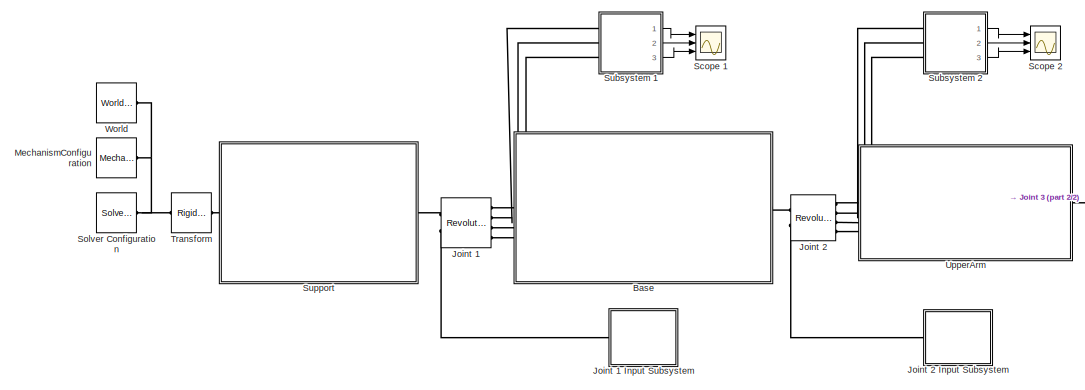
[diagram: root canvas - part 1/2, left side, full height]
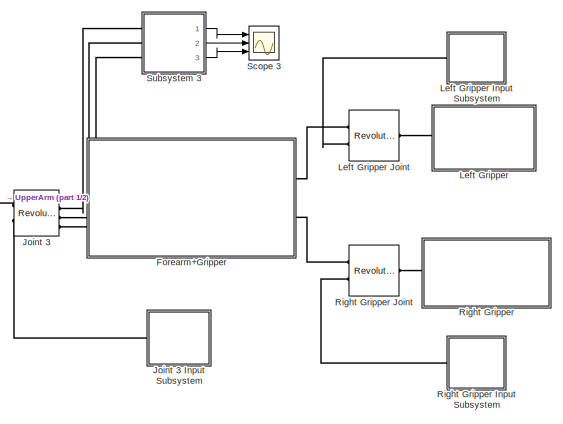
[diagram: root canvas - part 2/2, right side, full height]
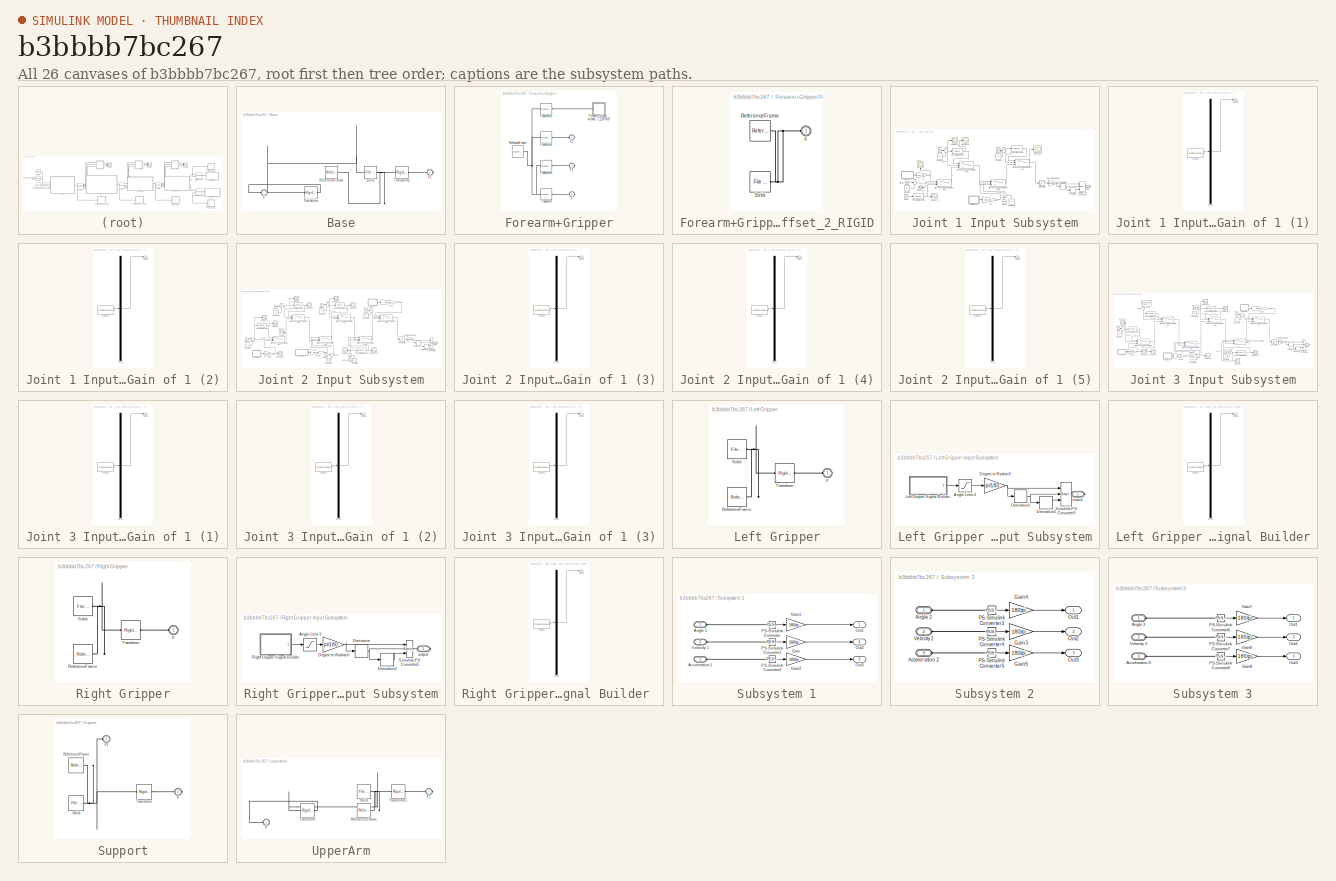
[diagram: thumbnail index - all 26 canvases of the model, root first then tree order]
MODEL slx_b3bbbb7bc267
KIND model
CONFIG AbsTol = auto
CONFIG EnableMultiTasking = off
CONFIG FixedStep = 0.01
CONFIG MaxStep = auto
CONFIG MinStep = auto
CONFIG RelTol = 1e-3
CONFIG SampleTimeConstraint = Unconstrained
CONFIG Solver = FixedStepAuto
CONFIG SolverName = FixedStepAuto
CONFIG StartTime = 0.0
CONFIG StopTime = 70
WORKSPACE source: external: MATLAB File  (data not in archive)
BLOCK [SubSystem] Base
  Ports = [0, 0, 0, 0, 0, 1, 1]
  RequestExecContextInheritance = off
BLOCK [PMIOPort] Base/F
  Side = Left
BLOCK [PMIOPort] Base/F1
  Port = 2
  Side = Right
BLOCK [Reference] Base/ReferenceFrame  REF=sm_lib/Frames and
Transforms/Reference
Frame
  Ports = [0, 0, 0, 0, 0, 0, 1]
  SourceBlock = sm_lib/Frames and\nTransforms/Reference\nFrame
  SourceProductBaseCode = MS
  SourceType = Reference\nFrame
BLOCK [Reference] Base/Solid  REF=sm_lib/Body Elements/File Solid
  Ports = [0, 0, 0, 0, 0, 0, 1]
  SourceBlock = sm_lib/Body Elements/File Solid
  SourceProductBaseCode = MS
  SourceType = File Solid
BLOCK [Reference] Base/Transform  REF=sm_lib/Frames and
Transforms/Rigid
Transform
  Ports = [0, 0, 0, 0, 0, 1, 1]
  SourceBlock = sm_lib/Frames and\nTransforms/Rigid\nTransform
  SourceProductBaseCode = MS
  SourceType = Rigid\nTransform
BLOCK [Reference] Base/Transform1  REF=sm_lib/Frames and
Transforms/Rigid
Transform
  Ports = [0, 0, 0, 0, 0, 1, 1]
  SourceBlock = sm_lib/Frames and\nTransforms/Rigid\nTransform
  SourceProductBaseCode = MS
  SourceType = Rigid\nTransform
BLOCK [SubSystem] Forearm+Gripper
  Ports = [0, 0, 0, 0, 0, 1, 2]
  RequestExecContextInheritance = off
BLOCK [PMIOPort] Forearm+Gripper/F
  Port = 3
  Side = Right
BLOCK [PMIOPort] Forearm+Gripper/F1
  Port = 2
  Side = Right
BLOCK [PMIOPort] Forearm+Gripper/F2
  Side = Left
BLOCK [SubSystem] Forearm+Gripper/Forearm_Gripper_without_offset_2_RIGID
  Ports = [0, 0, 0, 0, 0, 1]
  RequestExecContextInheritance = off
BLOCK [PMIOPort] Forearm+Gripper/Forearm_Gripper_without_offset_2_RIGID/F
  Side = Left
BLOCK [Reference] Forearm+Gripper/Forearm_Gripper_without_offset_2_RIGID/ReferenceFrame  REF=sm_lib/Frames and
Transforms/Reference
Frame
  Ports = [0, 0, 0, 0, 0, 0, 1]
  SourceBlock = sm_lib/Frames and\nTransforms/Reference\nFrame
  SourceProductBaseCode = MS
  SourceType = Reference\nFrame
BLOCK [Reference] Forearm+Gripper/Forearm_Gripper_without_offset_2_RIGID/Solid  REF=sm_lib/Body Elements/File Solid
  Ports = [0, 0, 0, 0, 0, 0, 1]
  SourceBlock = sm_lib/Body Elements/File Solid
  SourceProductBaseCode = MS
  SourceType = File Solid
BLOCK [Reference] Forearm+Gripper/ReferenceFrame  REF=sm_lib/Frames and
Transforms/Reference
Frame
  Ports = [0, 0, 0, 0, 0, 0, 1]
  SourceBlock = sm_lib/Frames and\nTransforms/Reference\nFrame
  SourceProductBaseCode = MS
  SourceType = Reference\nFrame
BLOCK [Reference] Forearm+Gripper/Transform  REF=sm_lib/Frames and
Transforms/Rigid
Transform
  Ports = [0, 0, 0, 0, 0, 1, 1]
  SourceBlock = sm_lib/Frames and\nTransforms/Rigid\nTransform
  SourceProductBaseCode = MS
  SourceType = Rigid\nTransform
BLOCK [Reference] Forearm+Gripper/Transform1  REF=sm_lib/Frames and
Transforms/Rigid
Transform
  Ports = [0, 0, 0, 0, 0, 1, 1]
  SourceBlock = sm_lib/Frames and\nTransforms/Rigid\nTransform
  SourceProductBaseCode = MS
  SourceType = Rigid\nTransform
BLOCK [Reference] Forearm+Gripper/Transform2  REF=sm_lib/Frames and
Transforms/Rigid
Transform
  Ports = [0, 0, 0, 0, 0, 1, 1]
  SourceBlock = sm_lib/Frames and\nTransforms/Rigid\nTransform
  SourceProductBaseCode = MS
  SourceType = Rigid\nTransform
BLOCK [Reference] Forearm+Gripper/Transform3  REF=sm_lib/Frames and
Transforms/Rigid
Transform
  Ports = [0, 0, 0, 0, 0, 1, 1]
  SourceBlock = sm_lib/Frames and\nTransforms/Rigid\nTransform
  SourceProductBaseCode = MS
  SourceType = Rigid\nTransform
BLOCK [Reference] Joint 1   REF=sm_lib/Joints/Revolute Joint
  Ports = [0, 0, 0, 0, 0, 2, 4]
  SourceBlock = sm_lib/Joints/Revolute Joint
  SourceProductBaseCode = MS
  SourceType = Revolute Joint
BLOCK [SubSystem] Joint 1 Input Subsystem
  Ports = [0, 0, 0, 0, 0, 0, 1]
  RequestExecContextInheritance = off
BLOCK [Switch] Joint 1 Input Subsystem/After 10 second, pass the first one
  Criteria = u2 > Threshold
  InputSameDT = off
  SaturateOnIntegerOverflow = off
BLOCK [Switch] Joint 1 Input Subsystem/After 30 second, pass the first one
  Criteria = u2 > Threshold
  InputSameDT = off
  SaturateOnIntegerOverflow = off
BLOCK [Switch] Joint 1 Input Subsystem/After 40 second, pass the first one
  Criteria = u2 > Threshold
  InputSameDT = off
  SaturateOnIntegerOverflow = off
BLOCK [Switch] Joint 1 Input Subsystem/After 60 second, pass the first one
  Criteria = u2 > Threshold
  InputSameDT = off
  SaturateOnIntegerOverflow = off
BLOCK [Saturate] Joint 1 Input Subsystem/Angle Limit 7
  LowerLimit = -180
  UpperLimit = 180
BLOCK [Clock] Joint 1 Input Subsystem/Clock
  Decimation = 2000
  DisplayTime = on
BLOCK [Clock] Joint 1 Input Subsystem/Clock2
  Decimation = 2000
  DisplayTime = on
BLOCK [Clock] Joint 1 Input Subsystem/Clock3
  Decimation = 2000
  DisplayTime = on
BLOCK [Clock] Joint 1 Input Subsystem/Clock4
  Decimation = 2000
  DisplayTime = on
  NameLocation = right
BLOCK [Clock] Joint 1 Input Subsystem/Clock5
  Decimation = 2000
  DisplayTime = on
BLOCK [Constant] Joint 1 Input Subsystem/Constant
  Value = 10
BLOCK [Constant] Joint 1 Input Subsystem/Constant1
  Value = 30
BLOCK [Constant] Joint 1 Input Subsystem/Constant2
  NameLocation = right
  Value = 40
BLOCK [Constant] Joint 1 Input Subsystem/Constant3
  Value = 60
BLOCK [Gain] Joint 1 Input Subsystem/Degree to Radian6
  Gain = pi/180
  NameLocation = top
BLOCK [Derivative] Joint 1 Input Subsystem/Derivative1
  CoefficientInTFapproximation = 1
BLOCK [Derivative] Joint 1 Input Subsystem/Derivative6
  CoefficientInTFapproximation = 1
BLOCK [SubSystem] Joint 1 Input Subsystem/Gain of 1 (1)
  ClipboardFcn = sigbuilder_block('clipboard');
  CloseFcn = sigbuilder_block('close');
  ContinueFcn = sigbuilder_block('continue');
  CopyFcn = sigbuilder_block('copy');
  DeleteFcn = sigbuilder_block('delete');
  LoadFcn = sigbuilder_block('load');
  MaskHideContents = on
  ModelCloseFcn = sigbuilder_block('modelClose');
  NameChangeFcn = sigbuilder_block('namechange');
  OpenFcn = sigbuilder_block('open',[437.6 199.2 550.4 400 ]);
  PauseFcn = sigbuilder_block('pause');
  Ports = [0, 1]
  PreSaveFcn = sigbuilder_block('preSave');
  RequestExecContextInheritance = off
  StartFcn = sigbuilder_block('start');
  StopFcn = sigbuilder_block('stop');
  Tag = STV Subsys
BLOCK [Demux] Joint 1 Input Subsystem/Gain of 1 (1)/Demux
  DisplayOption = none
  Outputs = 1
  Ports = [1, 1]
  Tag = STV Demux
BLOCK [FromWorkspace] Joint 1 Input Subsystem/Gain of 1 (1)/FromWs
  Tag = STV FromWs
  VariableName = tuvar
BLOCK [Outport] Joint 1 Input Subsystem/Gain of 1 (1)/Signal 1
  Tag = STV Outport
BLOCK [SubSystem] Joint 1 Input Subsystem/Gain of 1 (2)
  ClipboardFcn = sigbuilder_block('clipboard');
  CloseFcn = sigbuilder_block('close');
  ContinueFcn = sigbuilder_block('continue');
  CopyFcn = sigbuilder_block('copy');
  DeleteFcn = sigbuilder_block('delete');
  LoadFcn = sigbuilder_block('load');
  MaskHideContents = on
  ModelCloseFcn = sigbuilder_block('modelClose');
  NameChangeFcn = sigbuilder_block('namechange');
  OpenFcn = sigbuilder_block('open',[448.2 144.6 550.8 400.2 ]);
  PauseFcn = sigbuilder_block('pause');
  Ports = [0, 1]
  PreSaveFcn = sigbuilder_block('preSave');
  RequestExecContextInheritance = off
  StartFcn = sigbuilder_block('start');
  StopFcn = sigbuilder_block('stop');
  Tag = STV Subsys
BLOCK [Demux] Joint 1 Input Subsystem/Gain of 1 (2)/Demux
  DisplayOption = none
  Outputs = 1
  Ports = [1, 1]
  Tag = STV Demux
BLOCK [FromWorkspace] Joint 1 Input Subsystem/Gain of 1 (2)/FromWs
  Tag = STV FromWs
  VariableName = tuvar
BLOCK [Outport] Joint 1 Input Subsystem/Gain of 1 (2)/Signal 1
  Tag = STV Outport
BLOCK [Polyval] Joint 1 Input Subsystem/Polynomial q01 to q1
  Coefs = [ fcn14 , fcn13 , fcn12 , fcn11]
BLOCK [Polyval] Joint 1 Input Subsystem/Polynomial q1 to q1p
  Coefs = [ fcn1_4place , fcn1_3place , fcn1_2place , fcn1_1place]
BLOCK [Polyval] Joint 1 Input Subsystem/Polynomial q1p to q1
  Coefs = [ fcn1_4placetoPrevious , fcn1_3placetoPrevious , fcn1_2placetoPrevious , fcn1_1placetoPrevious]
BLOCK [Scope] Joint 1 Input Subsystem/Scope 1_1
  Floating = off
  NumInputPorts = 1
  Ports = [1]
  ScopeSpecificationString = Simulink.scopes.TimeScopeBlockCfg('CurrentConfiguration', extmgr.ConfigurationSet(extmgr.Configuration('Core','General UI',true),extmgr.Configuration('Core','Source UI',true),extmgr.Configuration('Sources','WiredSimulink',true,'DataLoggingVariableName','ScopeData8'),extmgr.Configuration('Visuals','Time Domain',true,'SerializedDisplays',{struct('MinYLimReal','-30902.00000','MaxYLimReal','3388.00000...<+1417ch>
BLOCK [Scope] Joint 1 Input Subsystem/Scope 1_2
  Floating = off
  NameLocation = right
  NumInputPorts = 1
  Ports = [1]
  ScopeSpecificationString = Simulink.scopes.TimeScopeBlockCfg('CurrentConfiguration', extmgr.ConfigurationSet(extmgr.Configuration('Core','General UI',true),extmgr.Configuration('Core','Source UI',true),extmgr.Configuration('Sources','WiredSimulink',true,'DataLoggingVariableName','ScopeData1'),extmgr.Configuration('Visuals','Time Domain',true,'SerializedDisplays',{struct('MinYLimReal','-60.71059','MaxYLimReal','-40.71059','Y...<+1763ch>
BLOCK [Scope] Joint 1 Input Subsystem/Scope 1_3
  Floating = off
  NumInputPorts = 1
  Ports = [1]
  ScopeSpecificationString = Simulink.scopes.TimeScopeBlockCfg('CurrentConfiguration', extmgr.ConfigurationSet(extmgr.Configuration('Core','General UI',true),extmgr.Configuration('Core','Source UI',true),extmgr.Configuration('Sources','WiredSimulink',true,'DataLoggingVariableName','ScopeData7'),extmgr.Configuration('Visuals','Time Domain',true,'SerializedDisplays',{struct('MinYLimReal','-38.75','MaxYLimReal','48.75','YLabelRe...<+1721ch>
BLOCK [Scope] Joint 1 Input Subsystem/Scope 1_4
  Floating = off
  NumInputPorts = 1
  Ports = [1]
  ScopeSpecificationString = Simulink.scopes.TimeScopeBlockCfg('CurrentConfiguration', extmgr.ConfigurationSet(extmgr.Configuration('Core','General UI',true),extmgr.Configuration('Core','Source UI',true),extmgr.Configuration('Sources','WiredSimulink',true,'DataLoggingVariableName','ScopeData6'),extmgr.Configuration('Visuals','Time Domain',true,'SerializedDisplays',{struct('MinYLimReal','-13794.3975','MaxYLimReal','2281.10302'...<+1729ch>
BLOCK [Scope] Joint 1 Input Subsystem/Scope 1_5
  Floating = off
  NumInputPorts = 1
  Ports = [1]
  ScopeSpecificationString = Simulink.scopes.TimeScopeBlockCfg('CurrentConfiguration', extmgr.ConfigurationSet(extmgr.Configuration('Core','General UI',true),extmgr.Configuration('Core','Source UI',true),extmgr.Configuration('Sources','WiredSimulink',true,'DataLoggingVariableName','ScopeData5'),extmgr.Configuration('Visuals','Time Domain',true,'SerializedDisplays',{struct('MinYLimReal','-107.65844','MaxYLimReal','68.36903','Y...<+1480ch>
BLOCK [Scope] Joint 1 Input Subsystem/Scope1_6
  Floating = off
  NumInputPorts = 1
  Ports = [1]
  ScopeSpecificationString = Simulink.scopes.TimeScopeBlockCfg('CurrentConfiguration', extmgr.ConfigurationSet(extmgr.Configuration('Core','General UI',true),extmgr.Configuration('Core','Source UI',true),extmgr.Configuration('Sources','WiredSimulink',true,'DataLoggingVariableName','ScopeData7'),extmgr.Configuration('Visuals','Time Domain',true,'SerializedDisplays',{struct('MinYLimReal','-18.75','MaxYLimReal','68.75','YLabelRe...<+1689ch>
BLOCK [Reference] Joint 1 Input Subsystem/Simulink-PS Converter6  REF=nesl_utility/Simulink-PS
Converter
  Ports = [3, 0, 0, 0, 0, 0, 1]
  SourceBlock = nesl_utility/Simulink-PS\nConverter
  SourceProductBaseCode = SS
  SourceType = Simulink-PS\nConverter
BLOCK [Sum] Joint 1 Input Subsystem/Sum
  Inputs = |+-
  Ports = [2, 1]
BLOCK [Sum] Joint 1 Input Subsystem/Sum1
  Inputs = |+-
  NameLocation = right
  Ports = [2, 1]
BLOCK [Sum] Joint 1 Input Subsystem/Sum2
  Inputs = |+-
  Ports = [2, 1]
BLOCK [Sum] Joint 1 Input Subsystem/Sum3
  Inputs = |+-
  Ports = [2, 1]
BLOCK [PMIOPort] Joint 1 Input Subsystem/output
  Side = Right
BLOCK [Gain] Joint 1 Input Subsystem/q1
  Gain = qd1_final
BLOCK [Gain] Joint 1 Input Subsystem/q1p
  Gain = qd1_finalplace
BLOCK [Reference] Joint 2  REF=sm_lib/Joints/Revolute Joint
  Ports = [0, 0, 0, 0, 0, 2, 4]
  SourceBlock = sm_lib/Joints/Revolute Joint
  SourceProductBaseCode = MS
  SourceType = Revolute Joint
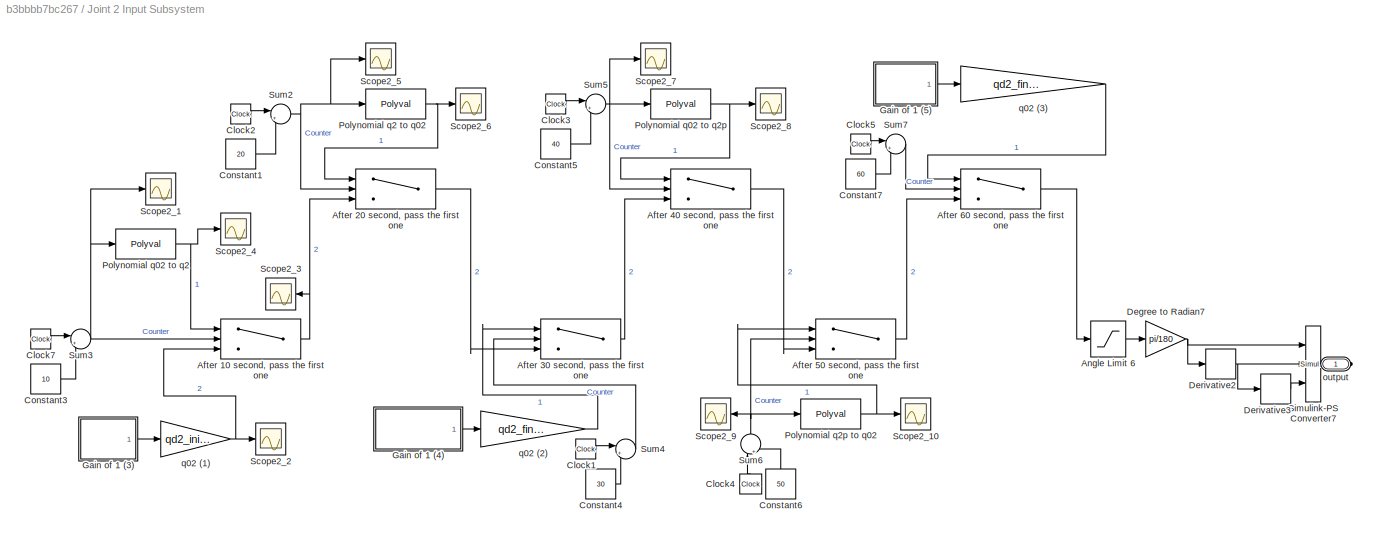
BLOCK [SubSystem] Joint 2 Input Subsystem
  Ports = [0, 0, 0, 0, 0, 0, 1]
  RequestExecContextInheritance = off
BLOCK [Switch] Joint 2 Input Subsystem/After 10 second, pass the first one
  InputSameDT = off
  SaturateOnIntegerOverflow = off
BLOCK [Switch] Joint 2 Input Subsystem/After 20 second, pass the first one
  InputSameDT = off
  SaturateOnIntegerOverflow = off
BLOCK [Switch] Joint 2 Input Subsystem/After 30 second, pass the first one
  InputSameDT = off
  SaturateOnIntegerOverflow = off
BLOCK [Switch] Joint 2 Input Subsystem/After 40 second, pass the first one
  InputSameDT = off
  SaturateOnIntegerOverflow = off
BLOCK [Switch] Joint 2 Input Subsystem/After 50 second, pass the first one
  InputSameDT = off
  SaturateOnIntegerOverflow = off
BLOCK [Switch] Joint 2 Input Subsystem/After 60 second, pass the first one
  InputSameDT = off
  SaturateOnIntegerOverflow = off
BLOCK [Saturate] Joint 2 Input Subsystem/Angle Limit 6
  LowerLimit = 0
  UpperLimit = 130
BLOCK [Clock] Joint 2 Input Subsystem/Clock1
  Decimation = 2000
  DisplayTime = on
BLOCK [Clock] Joint 2 Input Subsystem/Clock2
  Decimation = 2000
  DisplayTime = on
BLOCK [Clock] Joint 2 Input Subsystem/Clock3
  Decimation = 2000
  DisplayTime = on
BLOCK [Clock] Joint 2 Input Subsystem/Clock4
  Decimation = 2000
  DisplayTime = on
  NameLocation = right
BLOCK [Clock] Joint 2 Input Subsystem/Clock5
  Decimation = 2000
  DisplayTime = on
BLOCK [Clock] Joint 2 Input Subsystem/Clock7
  Decimation = 2000
  DisplayTime = on
BLOCK [Constant] Joint 2 Input Subsystem/Constant1
  Value = 20
BLOCK [Constant] Joint 2 Input Subsystem/Constant3
  Value = 10
BLOCK [Constant] Joint 2 Input Subsystem/Constant4
  Value = 30
BLOCK [Constant] Joint 2 Input Subsystem/Constant5
  Value = 40
BLOCK [Constant] Joint 2 Input Subsystem/Constant6
  NameLocation = right
  Value = 50
BLOCK [Constant] Joint 2 Input Subsystem/Constant7
  Value = 60
BLOCK [Gain] Joint 2 Input Subsystem/Degree to Radian7
  Gain = pi/180
  NameLocation = top
BLOCK [Derivative] Joint 2 Input Subsystem/Derivative2
  CoefficientInTFapproximation = 1
BLOCK [Derivative] Joint 2 Input Subsystem/Derivative3
  CoefficientInTFapproximation = 1
BLOCK [SubSystem] Joint 2 Input Subsystem/Gain of 1 (3)
  ClipboardFcn = sigbuilder_block('clipboard');
  CloseFcn = sigbuilder_block('close');
  ContinueFcn = sigbuilder_block('continue');
  CopyFcn = sigbuilder_block('copy');
  DeleteFcn = sigbuilder_block('delete');
  LoadFcn = sigbuilder_block('load');
  MaskHideContents = on
  ModelCloseFcn = sigbuilder_block('modelClose');
  NameChangeFcn = sigbuilder_block('namechange');
  OpenFcn = sigbuilder_block('open',[437.6 199.2 550.4 400 ]);
  PauseFcn = sigbuilder_block('pause');
  Ports = [0, 1]
  PreSaveFcn = sigbuilder_block('preSave');
  RequestExecContextInheritance = off
  StartFcn = sigbuilder_block('start');
  StopFcn = sigbuilder_block('stop');
  Tag = STV Subsys
BLOCK [Demux] Joint 2 Input Subsystem/Gain of 1 (3)/Demux
  DisplayOption = none
  Outputs = 1
  Ports = [1, 1]
  Tag = STV Demux
BLOCK [FromWorkspace] Joint 2 Input Subsystem/Gain of 1 (3)/FromWs
  Tag = STV FromWs
  VariableName = tuvar
BLOCK [Outport] Joint 2 Input Subsystem/Gain of 1 (3)/Signal 1
  Tag = STV Outport
BLOCK [SubSystem] Joint 2 Input Subsystem/Gain of 1 (4)
  ClipboardFcn = sigbuilder_block('clipboard');
  CloseFcn = sigbuilder_block('close');
  ContinueFcn = sigbuilder_block('continue');
  CopyFcn = sigbuilder_block('copy');
  DeleteFcn = sigbuilder_block('delete');
  LoadFcn = sigbuilder_block('load');
  MaskHideContents = on
  ModelCloseFcn = sigbuilder_block('modelClose');
  NameChangeFcn = sigbuilder_block('namechange');
  OpenFcn = sigbuilder_block('open',[437.6 199.2 550.4 400 ]);
  PauseFcn = sigbuilder_block('pause');
  Ports = [0, 1]
  PreSaveFcn = sigbuilder_block('preSave');
  RequestExecContextInheritance = off
  StartFcn = sigbuilder_block('start');
  StopFcn = sigbuilder_block('stop');
  Tag = STV Subsys
BLOCK [Demux] Joint 2 Input Subsystem/Gain of 1 (4)/Demux
  DisplayOption = none
  Outputs = 1
  Ports = [1, 1]
  Tag = STV Demux
BLOCK [FromWorkspace] Joint 2 Input Subsystem/Gain of 1 (4)/FromWs
  Tag = STV FromWs
  VariableName = tuvar
BLOCK [Outport] Joint 2 Input Subsystem/Gain of 1 (4)/Signal 1
  Tag = STV Outport
BLOCK [SubSystem] Joint 2 Input Subsystem/Gain of 1 (5)
  ClipboardFcn = sigbuilder_block('clipboard');
  CloseFcn = sigbuilder_block('close');
  ContinueFcn = sigbuilder_block('continue');
  CopyFcn = sigbuilder_block('copy');
  DeleteFcn = sigbuilder_block('delete');
  LoadFcn = sigbuilder_block('load');
  MaskHideContents = on
  ModelCloseFcn = sigbuilder_block('modelClose');
  NameChangeFcn = sigbuilder_block('namechange');
  OpenFcn = sigbuilder_block('open',[437.6 199.2 550.4 400 ]);
  PauseFcn = sigbuilder_block('pause');
  Ports = [0, 1]
  PreSaveFcn = sigbuilder_block('preSave');
  RequestExecContextInheritance = off
  StartFcn = sigbuilder_block('start');
  StopFcn = sigbuilder_block('stop');
  Tag = STV Subsys
BLOCK [Demux] Joint 2 Input Subsystem/Gain of 1 (5)/Demux
  DisplayOption = none
  Outputs = 1
  Ports = [1, 1]
  Tag = STV Demux
BLOCK [FromWorkspace] Joint 2 Input Subsystem/Gain of 1 (5)/FromWs
  Tag = STV FromWs
  VariableName = tuvar
BLOCK [Outport] Joint 2 Input Subsystem/Gain of 1 (5)/Signal 1
  Tag = STV Outport
BLOCK [Polyval] Joint 2 Input Subsystem/Polynomial q02 to q2
  Coefs = [ fcn24 , fcn23 , fcn22 , fcn21]
BLOCK [Polyval] Joint 2 Input Subsystem/Polynomial q02 to q2p
  Coefs = [ fcn2_4place , fcn2_3place , fcn2_2place , fcn2_1place]
BLOCK [Polyval] Joint 2 Input Subsystem/Polynomial q2 to q02
  Coefs = [ fcn24home , fcn23home , fcn22home , fcn21home]
BLOCK [Polyval] Joint 2 Input Subsystem/Polynomial q2p to q02
  Coefs = [ fcn2_4placetohome , fcn2_3placetohome , fcn2_2placetohome , fcn2_1placetohome]
BLOCK [Scope] Joint 2 Input Subsystem/Scope2_1
  Floating = off
  NumInputPorts = 1
  Ports = [1]
  ScopeSpecificationString = Simulink.scopes.TimeScopeBlockCfg('CurrentConfiguration', extmgr.ConfigurationSet(extmgr.Configuration('Core','General UI',true),extmgr.Configuration('Core','Source UI',true),extmgr.Configuration('Sources','WiredSimulink',true,'DataLoggingVariableName','ScopeData2'),extmgr.Configuration('Visuals','Time Domain',true,'SerializedDisplays',{struct('MinYLimReal','-16.25','MaxYLimReal','46.25','YLabelRe...<+1721ch>
BLOCK [Scope] Joint 2 Input Subsystem/Scope2_10
  Floating = off
  NumInputPorts = 1
  Ports = [1]
  ScopeSpecificationString = Simulink.scopes.TimeScopeBlockCfg('CurrentConfiguration', extmgr.ConfigurationSet(extmgr.Configuration('Core','General UI',true),extmgr.Configuration('Core','Source UI',true),extmgr.Configuration('Sources','WiredSimulink',true,'DataLoggingVariableName','ScopeData2'),extmgr.Configuration('Visuals','Time Domain',true,'SerializedDisplays',{struct('MinYLimReal','-63.54784','MaxYLimReal','502.22034','Y...<+1715ch>
BLOCK [Scope] Joint 2 Input Subsystem/Scope2_2
  Floating = off
  NumInputPorts = 1
  Ports = [1]
  ScopeSpecificationString = Simulink.scopes.TimeScopeBlockCfg('CurrentConfiguration', extmgr.ConfigurationSet(extmgr.Configuration('Core','General UI',true),extmgr.Configuration('Core','Source UI',true),extmgr.Configuration('Sources','WiredSimulink',true,'DataLoggingVariableName','ScopeData2'),extmgr.Configuration('Visuals','Time Domain',true,'SerializedDisplays',{struct('MinYLimReal','50.00000','MaxYLimReal','70.00000','YLa...<+1733ch>
BLOCK [Scope] Joint 2 Input Subsystem/Scope2_3
  Floating = off
  NameLocation = top
  NumInputPorts = 1
  Ports = [1]
  ScopeSpecificationString = Simulink.scopes.TimeScopeBlockCfg('CurrentConfiguration', extmgr.ConfigurationSet(extmgr.Configuration('Core','General UI',true),extmgr.Configuration('Core','Source UI',true),extmgr.Configuration('Sources','WiredSimulink',true,'DataLoggingVariableName','ScopeData2'),extmgr.Configuration('Visuals','Time Domain',true,'SerializedDisplays',{struct('MinYLimReal','-1409.80757','MaxYLimReal','13031.89219...<+1443ch>
BLOCK [Scope] Joint 2 Input Subsystem/Scope2_4
  Floating = off
  NumInputPorts = 1
  Ports = [1]
  ScopeSpecificationString = Simulink.scopes.TimeScopeBlockCfg('CurrentConfiguration', extmgr.ConfigurationSet(extmgr.Configuration('Core','General UI',true),extmgr.Configuration('Core','Source UI',true),extmgr.Configuration('Sources','WiredSimulink',true,'DataLoggingVariableName','ScopeData4'),extmgr.Configuration('Visuals','Time Domain',true,'SerializedDisplays',{struct('MinYLimReal','-509.28444','MaxYLimReal','3313.84977',...<+1719ch>
BLOCK [Scope] Joint 2 Input Subsystem/Scope2_5
  Floating = off
  NumInputPorts = 1
  Ports = [1]
  ScopeSpecificationString = Simulink.scopes.TimeScopeBlockCfg('CurrentConfiguration', extmgr.ConfigurationSet(extmgr.Configuration('Core','General UI',true),extmgr.Configuration('Core','Source UI',true),extmgr.Configuration('Sources','WiredSimulink',true,'DataLoggingVariableName','ScopeData5'),extmgr.Configuration('Visuals','Time Domain',true,'SerializedDisplays',{struct('MinYLimReal','-26.25','MaxYLimReal','36.25','YLabelRe...<+1721ch>
BLOCK [Scope] Joint 2 Input Subsystem/Scope2_6
  Floating = off
  NumInputPorts = 1
  Ports = [1]
  ScopeSpecificationString = Simulink.scopes.TimeScopeBlockCfg('CurrentConfiguration', extmgr.ConfigurationSet(extmgr.Configuration('Core','General UI',true),extmgr.Configuration('Core','Source UI',true),extmgr.Configuration('Sources','WiredSimulink',true,'DataLoggingVariableName','ScopeData3'),extmgr.Configuration('Visuals','Time Domain',true,'SerializedDisplays',{struct('MinYLimReal','-450.62288','MaxYLimReal','545.22867','...<+1719ch>
BLOCK [Scope] Joint 2 Input Subsystem/Scope2_7
  Floating = off
  NumInputPorts = 1
  Ports = [1]
  ScopeSpecificationString = Simulink.scopes.TimeScopeBlockCfg('CurrentConfiguration', extmgr.ConfigurationSet(extmgr.Configuration('Core','General UI',true),extmgr.Configuration('Core','Source UI',true),extmgr.Configuration('Sources','WiredSimulink',true,'DataLoggingVariableName','ScopeData9'),extmgr.Configuration('Visuals','Time Domain',true,'SerializedDisplays',{struct('MinYLimReal','-48.75','MaxYLimReal','38.75','YLabelRe...<+1721ch>
BLOCK [Scope] Joint 2 Input Subsystem/Scope2_8
  Floating = off
  NumInputPorts = 1
  Ports = [1]
  ScopeSpecificationString = Simulink.scopes.TimeScopeBlockCfg('CurrentConfiguration', extmgr.ConfigurationSet(extmgr.Configuration('Core','General UI',true),extmgr.Configuration('Core','Source UI',true),extmgr.Configuration('Sources','WiredSimulink',true,'DataLoggingVariableName','ScopeData8'),extmgr.Configuration('Visuals','Time Domain',true,'SerializedDisplays',{struct('MinYLimReal','-63.54784','MaxYLimReal','502.22034','Y...<+1715ch>
BLOCK [Scope] Joint 2 Input Subsystem/Scope2_9
  Floating = off
  NameLocation = top
  NumInputPorts = 1
  Ports = [1]
  ScopeSpecificationString = Simulink.scopes.TimeScopeBlockCfg('CurrentConfiguration', extmgr.ConfigurationSet(extmgr.Configuration('Core','General UI',true),extmgr.Configuration('Core','Source UI',true),extmgr.Configuration('Sources','WiredSimulink',true,'DataLoggingVariableName','ScopeData1'),extmgr.Configuration('Visuals','Time Domain',true,'SerializedDisplays',{struct('MinYLimReal','-24.995','MaxYLimReal','24.955','YLabel...<+1723ch>
BLOCK [Reference] Joint 2 Input Subsystem/Simulink-PS Converter7  REF=nesl_utility/Simulink-PS
Converter
  Ports = [3, 0, 0, 0, 0, 0, 1]
  SourceBlock = nesl_utility/Simulink-PS\nConverter
  SourceProductBaseCode = SS
  SourceType = Simulink-PS\nConverter
BLOCK [Sum] Joint 2 Input Subsystem/Sum2
  Inputs = |+-
  Ports = [2, 1]
BLOCK [Sum] Joint 2 Input Subsystem/Sum3
  Inputs = |+-
  Ports = [2, 1]
BLOCK [Sum] Joint 2 Input Subsystem/Sum4
  Inputs = |+-
  Ports = [2, 1]
BLOCK [Sum] Joint 2 Input Subsystem/Sum5
  Inputs = |+-
  Ports = [2, 1]
BLOCK [Sum] Joint 2 Input Subsystem/Sum6
  Inputs = |+-
  NameLocation = right
  Ports = [2, 1]
BLOCK [Sum] Joint 2 Input Subsystem/Sum7
  Inputs = |+-
  Ports = [2, 1]
BLOCK [PMIOPort] Joint 2 Input Subsystem/output
  Side = Right
BLOCK [Gain] Joint 2 Input Subsystem/q02 (1)
  Gain = qd2_initial
BLOCK [Gain] Joint 2 Input Subsystem/q02 (2)
  Gain = qd2_finalhome
BLOCK [Gain] Joint 2 Input Subsystem/q02 (3)
  Gain = qd2_finalplacetohome
BLOCK [Reference] Joint 3  REF=sm_lib/Joints/Revolute Joint
  Ports = [0, 0, 0, 0, 0, 2, 4]
  SourceBlock = sm_lib/Joints/Revolute Joint
  SourceProductBaseCode = MS
  SourceType = Revolute Joint
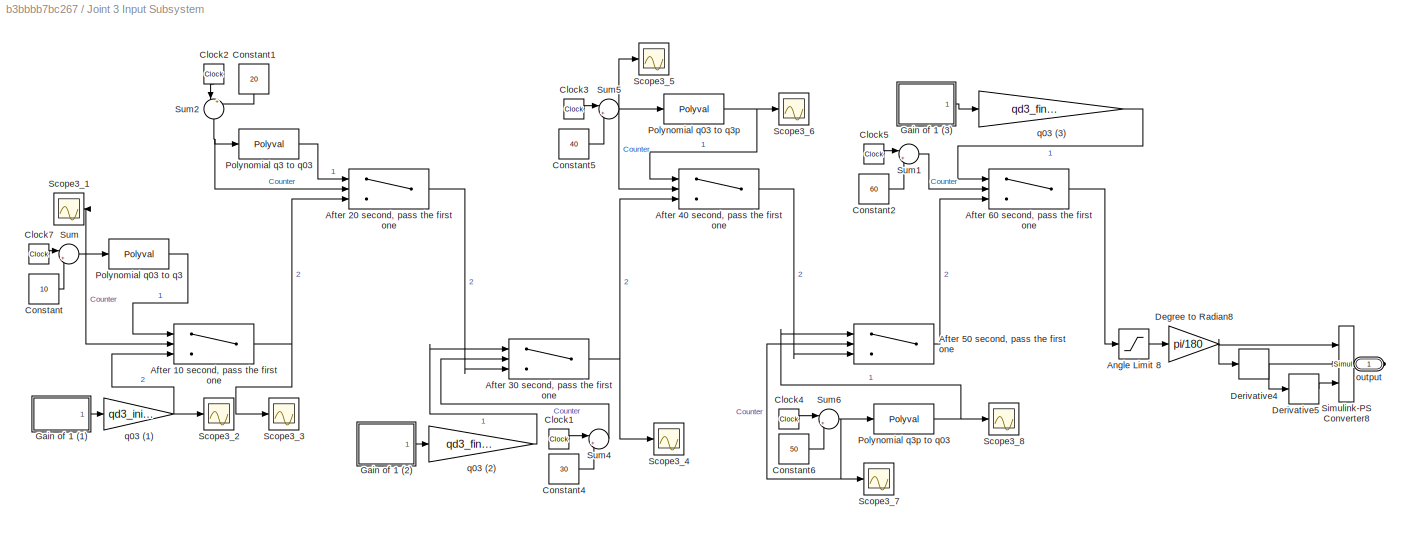
BLOCK [SubSystem] Joint 3 Input Subsystem
  Ports = [0, 0, 0, 0, 0, 0, 1]
  RequestExecContextInheritance = off
BLOCK [Switch] Joint 3 Input Subsystem/After 10 second, pass the first one
  InputSameDT = off
  SaturateOnIntegerOverflow = off
BLOCK [Switch] Joint 3 Input Subsystem/After 20 second, pass the first one
  InputSameDT = off
  SaturateOnIntegerOverflow = off
BLOCK [Switch] Joint 3 Input Subsystem/After 30 second, pass the first one
  InputSameDT = off
  SaturateOnIntegerOverflow = off
BLOCK [Switch] Joint 3 Input Subsystem/After 40 second, pass the first one
  InputSameDT = off
  SaturateOnIntegerOverflow = off
BLOCK [Switch] Joint 3 Input Subsystem/After 50 second, pass the first one
  InputSameDT = off
  SaturateOnIntegerOverflow = off
BLOCK [Switch] Joint 3 Input Subsystem/After 60 second, pass the first one
  InputSameDT = off
  SaturateOnIntegerOverflow = off
BLOCK [Saturate] Joint 3 Input Subsystem/Angle Limit 8
  LowerLimit = -90
  UpperLimit = 90
BLOCK [Clock] Joint 3 Input Subsystem/Clock1
  Decimation = 2000
  DisplayTime = on
BLOCK [Clock] Joint 3 Input Subsystem/Clock2
  Decimation = 2000
  DisplayTime = on
  NameLocation = left
BLOCK [Clock] Joint 3 Input Subsystem/Clock3
  Decimation = 2000
  DisplayTime = on
BLOCK [Clock] Joint 3 Input Subsystem/Clock4
  Decimation = 2000
  DisplayTime = on
BLOCK [Clock] Joint 3 Input Subsystem/Clock5
  Decimation = 2000
  DisplayTime = on
BLOCK [Clock] Joint 3 Input Subsystem/Clock7
  Decimation = 2000
  DisplayTime = on
BLOCK [Constant] Joint 3 Input Subsystem/Constant
  Value = 10
BLOCK [Constant] Joint 3 Input Subsystem/Constant1
  NameLocation = left
  Value = 20
BLOCK [Constant] Joint 3 Input Subsystem/Constant2
  Value = 60
BLOCK [Constant] Joint 3 Input Subsystem/Constant4
  Value = 30
BLOCK [Constant] Joint 3 Input Subsystem/Constant5
  Value = 40
BLOCK [Constant] Joint 3 Input Subsystem/Constant6
  Value = 50
BLOCK [Gain] Joint 3 Input Subsystem/Degree to Radian8
  Gain = pi/180
  NameLocation = top
BLOCK [Derivative] Joint 3 Input Subsystem/Derivative4
  CoefficientInTFapproximation = 1
BLOCK [Derivative] Joint 3 Input Subsystem/Derivative5
  CoefficientInTFapproximation = 1
BLOCK [SubSystem] Joint 3 Input Subsystem/Gain of 1 (1)
  ClipboardFcn = sigbuilder_block('clipboard');
  CloseFcn = sigbuilder_block('close');
  ContinueFcn = sigbuilder_block('continue');
  CopyFcn = sigbuilder_block('copy');
  DeleteFcn = sigbuilder_block('delete');
  LoadFcn = sigbuilder_block('load');
  MaskHideContents = on
  ModelCloseFcn = sigbuilder_block('modelClose');
  NameChangeFcn = sigbuilder_block('namechange');
  OpenFcn = sigbuilder_block('open',[437.6 199.2 550.4 400 ]);
  PauseFcn = sigbuilder_block('pause');
  Ports = [0, 1]
  PreSaveFcn = sigbuilder_block('preSave');
  RequestExecContextInheritance = off
  StartFcn = sigbuilder_block('start');
  StopFcn = sigbuilder_block('stop');
  Tag = STV Subsys
BLOCK [Demux] Joint 3 Input Subsystem/Gain of 1 (1)/Demux
  DisplayOption = none
  Outputs = 1
  Ports = [1, 1]
  Tag = STV Demux
BLOCK [FromWorkspace] Joint 3 Input Subsystem/Gain of 1 (1)/FromWs
  Tag = STV FromWs
  VariableName = tuvar
BLOCK [Outport] Joint 3 Input Subsystem/Gain of 1 (1)/Signal 1
  Tag = STV Outport
BLOCK [SubSystem] Joint 3 Input Subsystem/Gain of 1 (2)
  ClipboardFcn = sigbuilder_block('clipboard');
  CloseFcn = sigbuilder_block('close');
  ContinueFcn = sigbuilder_block('continue');
  CopyFcn = sigbuilder_block('copy');
  DeleteFcn = sigbuilder_block('delete');
  LoadFcn = sigbuilder_block('load');
  MaskHideContents = on
  ModelCloseFcn = sigbuilder_block('modelClose');
  NameChangeFcn = sigbuilder_block('namechange');
  OpenFcn = sigbuilder_block('open',[437.6 199.2 550.4 400 ]);
  PauseFcn = sigbuilder_block('pause');
  Ports = [0, 1]
  PreSaveFcn = sigbuilder_block('preSave');
  RequestExecContextInheritance = off
  StartFcn = sigbuilder_block('start');
  StopFcn = sigbuilder_block('stop');
  Tag = STV Subsys
BLOCK [Demux] Joint 3 Input Subsystem/Gain of 1 (2)/Demux
  DisplayOption = none
  Outputs = 1
  Ports = [1, 1]
  Tag = STV Demux
BLOCK [FromWorkspace] Joint 3 Input Subsystem/Gain of 1 (2)/FromWs
  Tag = STV FromWs
  VariableName = tuvar
BLOCK [Outport] Joint 3 Input Subsystem/Gain of 1 (2)/Signal 1
  Tag = STV Outport
BLOCK [SubSystem] Joint 3 Input Subsystem/Gain of 1 (3)
  ClipboardFcn = sigbuilder_block('clipboard');
  CloseFcn = sigbuilder_block('close');
  ContinueFcn = sigbuilder_block('continue');
  CopyFcn = sigbuilder_block('copy');
  DeleteFcn = sigbuilder_block('delete');
  LoadFcn = sigbuilder_block('load');
  MaskHideContents = on
  ModelCloseFcn = sigbuilder_block('modelClose');
  NameChangeFcn = sigbuilder_block('namechange');
  OpenFcn = sigbuilder_block('open',[437.6 199.2 550.4 400 ]);
  PauseFcn = sigbuilder_block('pause');
  Ports = [0, 1]
  PreSaveFcn = sigbuilder_block('preSave');
  RequestExecContextInheritance = off
  StartFcn = sigbuilder_block('start');
  StopFcn = sigbuilder_block('stop');
  Tag = STV Subsys
BLOCK [Demux] Joint 3 Input Subsystem/Gain of 1 (3)/Demux
  DisplayOption = none
  Outputs = 1
  Ports = [1, 1]
  Tag = STV Demux
BLOCK [FromWorkspace] Joint 3 Input Subsystem/Gain of 1 (3)/FromWs
  Tag = STV FromWs
  VariableName = tuvar
BLOCK [Outport] Joint 3 Input Subsystem/Gain of 1 (3)/Signal 1
  Tag = STV Outport
BLOCK [Polyval] Joint 3 Input Subsystem/Polynomial q03  to q3p
  Coefs = [ fcn3_4place , fcn3_3place , fcn3_2place , fcn3_1place]
BLOCK [Polyval] Joint 3 Input Subsystem/Polynomial q03 to q3
  Coefs = [ fcn34 , fcn33 , fcn32 , fcn31]
BLOCK [Polyval] Joint 3 Input Subsystem/Polynomial q3  to q03
  Coefs = [ fcn34home , fcn33home , fcn32home , fcn31home]
BLOCK [Polyval] Joint 3 Input Subsystem/Polynomial q3p  to q03
  Coefs = [ fcn3_4placetohome , fcn3_3placetohome , fcn3_2placetohome , fcn3_1placetohome]
BLOCK [Scope] Joint 3 Input Subsystem/Scope3_1
  Floating = off
  NameLocation = top
  NumInputPorts = 1
  Ports = [1]
  ScopeSpecificationString = Simulink.scopes.TimeScopeBlockCfg('CurrentConfiguration', extmgr.ConfigurationSet(extmgr.Configuration('Core','General UI',true),extmgr.Configuration('Core','Source UI',true),extmgr.Configuration('Sources','WiredSimulink',true,'DataLoggingVariableName','ScopeData5'),extmgr.Configuration('Visuals','Time Domain',true,'SerializedDisplays',{struct('MinYLimReal','-12.5','MaxYLimReal','12.5','YLabelReal...<+1679ch>
BLOCK [Scope] Joint 3 Input Subsystem/Scope3_2
  Floating = off
  NumInputPorts = 1
  Ports = [1]
  ScopeSpecificationString = Simulink.scopes.TimeScopeBlockCfg('CurrentConfiguration', extmgr.ConfigurationSet(extmgr.Configuration('Core','General UI',true),extmgr.Configuration('Core','Source UI',true),extmgr.Configuration('Sources','WiredSimulink',true,'DataLoggingVariableName','ScopeData3'),extmgr.Configuration('Visuals','Time Domain',true,'SerializedDisplays',{struct('MinYLimReal','-60.00000','MaxYLimReal','-40.00000','Y...<+1735ch>
BLOCK [Scope] Joint 3 Input Subsystem/Scope3_3
  Floating = off
  NumInputPorts = 1
  Ports = [1]
  ScopeSpecificationString = Simulink.scopes.TimeScopeBlockCfg('CurrentConfiguration', extmgr.ConfigurationSet(extmgr.Configuration('Core','General UI',true),extmgr.Configuration('Core','Source UI',true),extmgr.Configuration('Sources','WiredSimulink',true,'DataLoggingVariableName','ScopeData4'),extmgr.Configuration('Visuals','Time Domain',true,'SerializedDisplays',{struct('MinYLimReal','-485.20173','MaxYLimReal','3568.05969',...<+1412ch>
BLOCK [Scope] Joint 3 Input Subsystem/Scope3_4
  Floating = off
  NumInputPorts = 1
  Ports = [1]
  ScopeSpecificationString = Simulink.scopes.TimeScopeBlockCfg('CurrentConfiguration', extmgr.ConfigurationSet(extmgr.Configuration('Core','General UI',true),extmgr.Configuration('Core','Source UI',true),extmgr.Configuration('Sources','WiredSimulink',true,'DataLoggingVariableName','ScopeData1'),extmgr.Configuration('Visuals','Time Domain',true,'SerializedDisplays',{struct('MinYLimReal','-83.63709','MaxYLimReal','-46.02208','Y...<+1423ch>
BLOCK [Scope] Joint 3 Input Subsystem/Scope3_5
  Floating = off
  NumInputPorts = 1
  Ports = [1]
  ScopeSpecificationString = Simulink.scopes.TimeScopeBlockCfg('CurrentConfiguration', extmgr.ConfigurationSet(extmgr.Configuration('Core','General UI',true),extmgr.Configuration('Core','Source UI',true),extmgr.Configuration('Sources','WiredSimulink',true,'DataLoggingVariableName','ScopeData11'),extmgr.Configuration('Visuals','Time Domain',true,'SerializedDisplays',{struct('MinYLimReal','-48.75','MaxYLimReal','38.75','YLabelR...<+1722ch>
BLOCK [Scope] Joint 3 Input Subsystem/Scope3_6
  Floating = off
  NumInputPorts = 1
  Ports = [1]
  ScopeSpecificationString = Simulink.scopes.TimeScopeBlockCfg('CurrentConfiguration', extmgr.ConfigurationSet(extmgr.Configuration('Core','General UI',true),extmgr.Configuration('Core','Source UI',true),extmgr.Configuration('Sources','WiredSimulink',true,'DataLoggingVariableName','ScopeData10'),extmgr.Configuration('Visuals','Time Domain',true,'SerializedDisplays',{struct('MinYLimReal','-63.54784','MaxYLimReal','502.22034','...<+1716ch>
BLOCK [Scope] Joint 3 Input Subsystem/Scope3_7
  Floating = off
  NumInputPorts = 1
  Ports = [1]
  ScopeSpecificationString = Simulink.scopes.TimeScopeBlockCfg('CurrentConfiguration', extmgr.ConfigurationSet(extmgr.Configuration('Core','General UI',true),extmgr.Configuration('Core','Source UI',true),extmgr.Configuration('Sources','WiredSimulink',true,'DataLoggingVariableName','ScopeData3'),extmgr.Configuration('Visuals','Time Domain',true,'SerializedDisplays',{struct('MinYLimReal','-24.995','MaxYLimReal','24.955','YLabel...<+1723ch>
BLOCK [Scope] Joint 3 Input Subsystem/Scope3_8
  Floating = off
  NameLocation = top
  NumInputPorts = 1
  Ports = [1]
  ScopeSpecificationString = Simulink.scopes.TimeScopeBlockCfg('CurrentConfiguration', extmgr.ConfigurationSet(extmgr.Configuration('Core','General UI',true),extmgr.Configuration('Core','Source UI',true),extmgr.Configuration('Sources','WiredSimulink',true,'DataLoggingVariableName','ScopeData4'),extmgr.Configuration('Visuals','Time Domain',true,'SerializedDisplays',{struct('MinYLimReal','-63.54784','MaxYLimReal','502.22034','Y...<+1715ch>
BLOCK [Reference] Joint 3 Input Subsystem/Simulink-PS Converter8  REF=nesl_utility/Simulink-PS
Converter
  Ports = [3, 0, 0, 0, 0, 0, 1]
  SourceBlock = nesl_utility/Simulink-PS\nConverter
  SourceProductBaseCode = SS
  SourceType = Simulink-PS\nConverter
BLOCK [Sum] Joint 3 Input Subsystem/Sum
  Inputs = |+-
  Ports = [2, 1]
BLOCK [Sum] Joint 3 Input Subsystem/Sum1
  Inputs = |+-
  Ports = [2, 1]
BLOCK [Sum] Joint 3 Input Subsystem/Sum2
  Inputs = |+-
  NameLocation = left
  Ports = [2, 1]
BLOCK [Sum] Joint 3 Input Subsystem/Sum4
  Inputs = |+-
  Ports = [2, 1]
BLOCK [Sum] Joint 3 Input Subsystem/Sum5
  Inputs = |+-
  Ports = [2, 1]
BLOCK [Sum] Joint 3 Input Subsystem/Sum6
  Inputs = |+-
  Ports = [2, 1]
BLOCK [PMIOPort] Joint 3 Input Subsystem/output
  Side = Right
BLOCK [Gain] Joint 3 Input Subsystem/q03 (1)
  Gain = qd3_initial
BLOCK [Gain] Joint 3 Input Subsystem/q03 (2)
  Gain = qd3_finalhome
BLOCK [Gain] Joint 3 Input Subsystem/q03 (3)
  Gain = qd3_finalplacetohome
BLOCK [SubSystem] Left Gripper
  Ports = [0, 0, 0, 0, 0, 1]
  RequestExecContextInheritance = off
BLOCK [SubSystem] Left Gripper Input Subsystem
  Ports = [0, 0, 0, 0, 0, 0, 1]
  RequestExecContextInheritance = off
BLOCK [Saturate] Left Gripper Input Subsystem/Angle Limit 4
  LowerLimit = 161
  UpperLimit = 194
BLOCK [Gain] Left Gripper Input Subsystem/Degree to Radian3
  Gain = pi/180
  NameLocation = top
BLOCK [Derivative] Left Gripper Input Subsystem/Derivative2
BLOCK [Derivative] Left Gripper Input Subsystem/Derivative3
BLOCK [SubSystem] Left Gripper Input Subsystem/Left Gripper Signal Builder
  ClipboardFcn = sigbuilder_block('clipboard');
  CloseFcn = sigbuilder_block('close');
  ContinueFcn = sigbuilder_block('continue');
  CopyFcn = sigbuilder_block('copy');
  DeleteFcn = sigbuilder_block('delete');
  LoadFcn = sigbuilder_block('load');
  MaskHideContents = on
  ModelCloseFcn = sigbuilder_block('modelClose');
  NameChangeFcn = sigbuilder_block('namechange');
  OpenFcn = sigbuilder_block('open',[437.6 199.2 550.4 400 ]);
  PauseFcn = sigbuilder_block('pause');
  Ports = [0, 1]
  PreSaveFcn = sigbuilder_block('preSave');
  RequestExecContextInheritance = off
  StartFcn = sigbuilder_block('start');
  StopFcn = sigbuilder_block('stop');
  Tag = STV Subsys
BLOCK [Demux] Left Gripper Input Subsystem/Left Gripper Signal Builder/Demux
  DisplayOption = none
  Outputs = 1
  Ports = [1, 1]
  Tag = STV Demux
BLOCK [FromWorkspace] Left Gripper Input Subsystem/Left Gripper Signal Builder/FromWs
  Tag = STV FromWs
  VariableName = tuvar
BLOCK [Outport] Left Gripper Input Subsystem/Left Gripper Signal Builder/Signal 1
  Tag = STV Outport
BLOCK [Reference] Left Gripper Input Subsystem/Simulink-PS Converter3  REF=nesl_utility/Simulink-PS
Converter
  Ports = [3, 0, 0, 0, 0, 0, 1]
  SourceBlock = nesl_utility/Simulink-PS\nConverter
  SourceProductBaseCode = SS
  SourceType = Simulink-PS\nConverter
BLOCK [PMIOPort] Left Gripper Input Subsystem/output
  Side = Right
BLOCK [Reference] Left Gripper Joint  REF=sm_lib/Joints/Revolute Joint
  Ports = [0, 0, 0, 0, 0, 2, 1]
  SourceBlock = sm_lib/Joints/Revolute Joint
  SourceProductBaseCode = MS
  SourceType = Revolute Joint
BLOCK [PMIOPort] Left Gripper/F
  Side = Left
BLOCK [Reference] Left Gripper/ReferenceFrame  REF=sm_lib/Frames and
Transforms/Reference
Frame
  Ports = [0, 0, 0, 0, 0, 0, 1]
  SourceBlock = sm_lib/Frames and\nTransforms/Reference\nFrame
  SourceProductBaseCode = MS
  SourceType = Reference\nFrame
BLOCK [Reference] Left Gripper/Solid  REF=sm_lib/Body Elements/File Solid
  Ports = [0, 0, 0, 0, 0, 0, 1]
  SourceBlock = sm_lib/Body Elements/File Solid
  SourceProductBaseCode = MS
  SourceType = File Solid
BLOCK [Reference] Left Gripper/Transform  REF=sm_lib/Frames and
Transforms/Rigid
Transform
  Ports = [0, 0, 0, 0, 0, 1, 1]
  SourceBlock = sm_lib/Frames and\nTransforms/Rigid\nTransform
  SourceProductBaseCode = MS
  SourceType = Rigid\nTransform
BLOCK [Reference] MechanismConfiguration  REF=sm_lib/Utilities/Mechanism
Configuration
  Ports = [0, 0, 0, 0, 0, 0, 1]
  SourceBlock = sm_lib/Utilities/Mechanism\nConfiguration
  SourceProductBaseCode = MS
  SourceType = Mechanism\nConfiguration
BLOCK [SubSystem] Right Gripper
  Ports = [0, 0, 0, 0, 0, 1]
  RequestExecContextInheritance = off
BLOCK [SubSystem] Right Gripper Input Subsystem
  Ports = [0, 0, 0, 0, 0, 0, 1]
  RequestExecContextInheritance = off
BLOCK [Saturate] Right Gripper Input Subsystem/Angle Limit 3
  LowerLimit = 140
  UpperLimit = 173
BLOCK [Gain] Right Gripper Input Subsystem/Degree to Radian5
  Gain = pi/180
  NameLocation = top
BLOCK [Derivative] Right Gripper Input Subsystem/Derivative
BLOCK [Derivative] Right Gripper Input Subsystem/Derivative1
BLOCK [SubSystem] Right Gripper Input Subsystem/Right Gripper Signal Builder 
  ClipboardFcn = sigbuilder_block('clipboard');
  CloseFcn = sigbuilder_block('close');
  ContinueFcn = sigbuilder_block('continue');
  CopyFcn = sigbuilder_block('copy');
  DeleteFcn = sigbuilder_block('delete');
  LoadFcn = sigbuilder_block('load');
  MaskHideContents = on
  ModelCloseFcn = sigbuilder_block('modelClose');
  NameChangeFcn = sigbuilder_block('namechange');
  OpenFcn = sigbuilder_block('open',[485.4 148.2 550.8 400.2 ]);
  PauseFcn = sigbuilder_block('pause');
  Ports = [0, 1]
  PreSaveFcn = sigbuilder_block('preSave');
  RequestExecContextInheritance = off
  StartFcn = sigbuilder_block('start');
  StopFcn = sigbuilder_block('stop');
  Tag = STV Subsys
BLOCK [Demux] Right Gripper Input Subsystem/Right Gripper Signal Builder /Demux
  DisplayOption = none
  Outputs = 1
  Ports = [1, 1]
  Tag = STV Demux
BLOCK [FromWorkspace] Right Gripper Input Subsystem/Right Gripper Signal Builder /FromWs
  Tag = STV FromWs
  VariableName = tuvar
BLOCK [Outport] Right Gripper Input Subsystem/Right Gripper Signal Builder /Signal 1
  Tag = STV Outport
BLOCK [Reference] Right Gripper Input Subsystem/Simulink-PS Converter5  REF=nesl_utility/Simulink-PS
Converter
  Ports = [3, 0, 0, 0, 0, 0, 1]
  SourceBlock = nesl_utility/Simulink-PS\nConverter
  SourceProductBaseCode = SS
  SourceType = Simulink-PS\nConverter
BLOCK [PMIOPort] Right Gripper Input Subsystem/output
  Side = Right
BLOCK [Reference] Right Gripper Joint  REF=sm_lib/Joints/Revolute Joint
  Ports = [0, 0, 0, 0, 0, 2, 1]
  SourceBlock = sm_lib/Joints/Revolute Joint
  SourceProductBaseCode = MS
  SourceType = Revolute Joint
BLOCK [PMIOPort] Right Gripper/F
  Side = Left
BLOCK [Reference] Right Gripper/ReferenceFrame  REF=sm_lib/Frames and
Transforms/Reference
Frame
  Ports = [0, 0, 0, 0, 0, 0, 1]
  SourceBlock = sm_lib/Frames and\nTransforms/Reference\nFrame
  SourceProductBaseCode = MS
  SourceType = Reference\nFrame
BLOCK [Reference] Right Gripper/Solid  REF=sm_lib/Body Elements/File Solid
  Ports = [0, 0, 0, 0, 0, 0, 1]
  SourceBlock = sm_lib/Body Elements/File Solid
  SourceProductBaseCode = MS
  SourceType = File Solid
BLOCK [Reference] Right Gripper/Transform  REF=sm_lib/Frames and
Transforms/Rigid
Transform
  Ports = [0, 0, 0, 0, 0, 1, 1]
  SourceBlock = sm_lib/Frames and\nTransforms/Rigid\nTransform
  SourceProductBaseCode = MS
  SourceType = Rigid\nTransform
BLOCK [Scope] Scope 1
  Floating = off
  NumInputPorts = 3
  Ports = [3]
  ScopeSpecificationString = Simulink.scopes.TimeScopeBlockCfg('CurrentConfiguration', extmgr.ConfigurationSet(extmgr.Configuration('Core','General UI',true),extmgr.Configuration('Core','Source UI',true),extmgr.Configuration('Sources','WiredSimulink',true,'DataLoggingVariableName','ScopeData1'),extmgr.Configuration('Visuals','Time Domain',true,'SerializedDisplays',{struct('MinYLimReal','-109.54633','MaxYLimReal','97.34993','Y...<+3293ch>
BLOCK [Scope] Scope 2
  Floating = off
  NumInputPorts = 3
  Ports = [3]
  ScopeSpecificationString = Simulink.scopes.TimeScopeBlockCfg('CurrentConfiguration', extmgr.ConfigurationSet(extmgr.Configuration('Core','General UI',true),extmgr.Configuration('Core','Source UI',true),extmgr.Configuration('Sources','WiredSimulink',true,'DataLoggingVariableName','ScopeData2'),extmgr.Configuration('Visuals','Time Domain',true,'SerializedDisplays',{struct('MinYLimReal','0','MaxYLimReal','70.00000','YLabelReal...<+3025ch>
BLOCK [Scope] Scope 3
  Floating = off
  NumInputPorts = 3
  Ports = [3]
  ScopeSpecificationString = Simulink.scopes.TimeScopeBlockCfg('CurrentConfiguration', extmgr.ConfigurationSet(extmgr.Configuration('Core','General UI',true),extmgr.Configuration('Core','Source UI',true),extmgr.Configuration('Sources','WiredSimulink',true),extmgr.Configuration('Visuals','Time Domain',true,'SerializedDisplays',{struct('MinYLimReal','-78.43281','MaxYLimReal','-46.56719','YLabelReal','Degree','MinYLimMag','0.000...<+3016ch>
BLOCK [Reference] Solver Configuration  REF=nesl_utility/Solver
Configuration
  Ports = [0, 0, 0, 0, 0, 0, 1]
  SourceBlock = nesl_utility/Solver\nConfiguration
  SourceProductBaseCode = SS
  SourceType = Solver\nConfiguration
BLOCK [SubSystem] Subsystem 1
  Ports = [0, 3, 0, 0, 0, 3]
  RequestExecContextInheritance = off
BLOCK [PMIOPort] Subsystem 1/Acceleration 1
  Port = 3
  Side = Left
BLOCK [PMIOPort] Subsystem 1/Angle 1
  Side = Left
BLOCK [Gain] Subsystem 1/Gain
  Gain = 180/pi
BLOCK [Gain] Subsystem 1/Gain1
  Gain = 180/pi
BLOCK [Gain] Subsystem 1/Gain2
  Gain = 180/pi
BLOCK [Outport] Subsystem 1/Out1
BLOCK [Outport] Subsystem 1/Out2
  Port = 2
BLOCK [Outport] Subsystem 1/Out3
  Port = 3
BLOCK [Reference] Subsystem 1/PS-Simulink Converter  REF=nesl_utility/PS-Simulink
Converter
  Ports = [0, 1, 0, 0, 0, 1]
  SourceBlock = nesl_utility/PS-Simulink\nConverter
  SourceProductBaseCode = SS
  SourceType = PS-Simulink\nConverter
BLOCK [Reference] Subsystem 1/PS-Simulink Converter1  REF=nesl_utility/PS-Simulink
Converter
  Ports = [0, 1, 0, 0, 0, 1]
  SourceBlock = nesl_utility/PS-Simulink\nConverter
  SourceProductBaseCode = SS
  SourceType = PS-Simulink\nConverter
BLOCK [Reference] Subsystem 1/PS-Simulink Converter2  REF=nesl_utility/PS-Simulink
Converter
  Ports = [0, 1, 0, 0, 0, 1]
  SourceBlock = nesl_utility/PS-Simulink\nConverter
  SourceProductBaseCode = SS
  SourceType = PS-Simulink\nConverter
BLOCK [PMIOPort] Subsystem 1/Velocity 1
  Port = 2
  Side = Left
BLOCK [SubSystem] Subsystem 2
  Ports = [0, 3, 0, 0, 0, 3]
  RequestExecContextInheritance = off
BLOCK [PMIOPort] Subsystem 2/Acceleration 2
  Port = 3
  Side = Left
BLOCK [PMIOPort] Subsystem 2/Angle 2
  Side = Left
BLOCK [Gain] Subsystem 2/Gain3
  Gain = 180/pi
BLOCK [Gain] Subsystem 2/Gain4
  Gain = 180/pi
BLOCK [Gain] Subsystem 2/Gain5
  Gain = 180/pi
BLOCK [Outport] Subsystem 2/Out1
BLOCK [Outport] Subsystem 2/Out2
  Port = 2
BLOCK [Outport] Subsystem 2/Out3
  Port = 3
BLOCK [Reference] Subsystem 2/PS-Simulink Converter3  REF=nesl_utility/PS-Simulink
Converter
  Ports = [0, 1, 0, 0, 0, 1]
  SourceBlock = nesl_utility/PS-Simulink\nConverter
  SourceProductBaseCode = SS
  SourceType = PS-Simulink\nConverter
BLOCK [Reference] Subsystem 2/PS-Simulink Converter4  REF=nesl_utility/PS-Simulink
Converter
  Ports = [0, 1, 0, 0, 0, 1]
  SourceBlock = nesl_utility/PS-Simulink\nConverter
  SourceProductBaseCode = SS
  SourceType = PS-Simulink\nConverter
BLOCK [Reference] Subsystem 2/PS-Simulink Converter5  REF=nesl_utility/PS-Simulink
Converter
  Ports = [0, 1, 0, 0, 0, 1]
  SourceBlock = nesl_utility/PS-Simulink\nConverter
  SourceProductBaseCode = SS
  SourceType = PS-Simulink\nConverter
BLOCK [PMIOPort] Subsystem 2/Velocity 2
  Port = 2
  Side = Left
BLOCK [SubSystem] Subsystem 3
  Ports = [0, 3, 0, 0, 0, 3]
  RequestExecContextInheritance = off
BLOCK [PMIOPort] Subsystem 3/Acceleration 3
  Port = 3
  Side = Left
BLOCK [PMIOPort] Subsystem 3/Angle 3
  Side = Left
BLOCK [Gain] Subsystem 3/Gain6
  Gain = 180/pi
BLOCK [Gain] Subsystem 3/Gain7
  Gain = 180/pi
BLOCK [Gain] Subsystem 3/Gain8
  Gain = 180/pi
BLOCK [Outport] Subsystem 3/Out1
BLOCK [Outport] Subsystem 3/Out2
  Port = 2
BLOCK [Outport] Subsystem 3/Out3
  Port = 3
BLOCK [Reference] Subsystem 3/PS-Simulink Converter6  REF=nesl_utility/PS-Simulink
Converter
  Ports = [0, 1, 0, 0, 0, 1]
  SourceBlock = nesl_utility/PS-Simulink\nConverter
  SourceProductBaseCode = SS
  SourceType = PS-Simulink\nConverter
BLOCK [Reference] Subsystem 3/PS-Simulink Converter7  REF=nesl_utility/PS-Simulink
Converter
  Ports = [0, 1, 0, 0, 0, 1]
  SourceBlock = nesl_utility/PS-Simulink\nConverter
  SourceProductBaseCode = SS
  SourceType = PS-Simulink\nConverter
BLOCK [Reference] Subsystem 3/PS-Simulink Converter8  REF=nesl_utility/PS-Simulink
Converter
  Ports = [0, 1, 0, 0, 0, 1]
  SourceBlock = nesl_utility/PS-Simulink\nConverter
  SourceProductBaseCode = SS
  SourceType = PS-Simulink\nConverter
BLOCK [PMIOPort] Subsystem 3/Velocity 3
  Port = 2
  Side = Left
BLOCK [SubSystem] Support
  Ports = [0, 0, 0, 0, 0, 1, 1]
  RequestExecContextInheritance = off
BLOCK [PMIOPort] Support/F
  Port = 2
  Side = Right
BLOCK [PMIOPort] Support/F1
  Side = Left
BLOCK [Reference] Support/ReferenceFrame  REF=sm_lib/Frames and
Transforms/Reference
Frame
  Ports = [0, 0, 0, 0, 0, 0, 1]
  SourceBlock = sm_lib/Frames and\nTransforms/Reference\nFrame
  SourceProductBaseCode = MS
  SourceType = Reference\nFrame
BLOCK [Reference] Support/Solid  REF=sm_lib/Body Elements/File Solid
  Ports = [0, 0, 0, 0, 0, 0, 1]
  SourceBlock = sm_lib/Body Elements/File Solid
  SourceProductBaseCode = MS
  SourceType = File Solid
BLOCK [Reference] Support/Transform  REF=sm_lib/Frames and
Transforms/Rigid
Transform
  Ports = [0, 0, 0, 0, 0, 1, 1]
  SourceBlock = sm_lib/Frames and\nTransforms/Rigid\nTransform
  SourceProductBaseCode = MS
  SourceType = Rigid\nTransform
BLOCK [Reference] Transform  REF=sm_lib/Frames and
Transforms/Rigid
Transform
  Ports = [0, 0, 0, 0, 0, 1, 1]
  SourceBlock = sm_lib/Frames and\nTransforms/Rigid\nTransform
  SourceProductBaseCode = MS
  SourceType = Rigid\nTransform
BLOCK [SubSystem] UpperArm
  Ports = [0, 0, 0, 0, 0, 1, 1]
  RequestExecContextInheritance = off
BLOCK [PMIOPort] UpperArm/F
  Side = Left
BLOCK [PMIOPort] UpperArm/F1
  Port = 2
  Side = Right
BLOCK [Reference] UpperArm/ReferenceFrame  REF=sm_lib/Frames and
Transforms/Reference
Frame
  Ports = [0, 0, 0, 0, 0, 0, 1]
  SourceBlock = sm_lib/Frames and\nTransforms/Reference\nFrame
  SourceProductBaseCode = MS
  SourceType = Reference\nFrame
BLOCK [Reference] UpperArm/Solid  REF=sm_lib/Body Elements/File Solid
  Ports = [0, 0, 0, 0, 0, 0, 1]
  SourceBlock = sm_lib/Body Elements/File Solid
  SourceProductBaseCode = MS
  SourceType = File Solid
BLOCK [Reference] UpperArm/Transform  REF=sm_lib/Frames and
Transforms/Rigid
Transform
  Ports = [0, 0, 0, 0, 0, 1, 1]
  SourceBlock = sm_lib/Frames and\nTransforms/Rigid\nTransform
  SourceProductBaseCode = MS
  SourceType = Rigid\nTransform
BLOCK [Reference] UpperArm/Transform1  REF=sm_lib/Frames and
Transforms/Rigid
Transform
  Ports = [0, 0, 0, 0, 0, 1, 1]
  SourceBlock = sm_lib/Frames and\nTransforms/Rigid\nTransform
  SourceProductBaseCode = MS
  SourceType = Rigid\nTransform
BLOCK [Reference] World  REF=sm_lib/Frames and
Transforms/World Frame
  Ports = [0, 0, 0, 0, 0, 0, 1]
  SourceBlock = sm_lib/Frames and\nTransforms/World Frame
  SourceProductBaseCode = MS
  SourceType = World Frame
LINE Joint 1 Input Subsystem/After 10 second, pass the first one:1 -> Joint 1 Input Subsystem/After 30 second, pass the first one:3
LINE Joint 1 Input Subsystem/After 30 second, pass the first one:1 -> Joint 1 Input Subsystem/After 40 second, pass the first one:3
LINE Joint 1 Input Subsystem/After 40 second, pass the first one:1 -> Joint 1 Input Subsystem/After 60 second, pass the first one:3
NET Joint 1 Input Subsystem/After 60 second, pass the first one:1 -> Joint 1 Input Subsystem/Angle Limit 7:1, Joint 1 Input Subsystem/Scope 1_5:1
LINE Joint 1 Input Subsystem/Angle Limit 7:1 -> Joint 1 Input Subsystem/Degree to Radian6:1
LINE Joint 1 Input Subsystem/Clock2:1 -> Joint 1 Input Subsystem/Sum:1
LINE Joint 1 Input Subsystem/Clock3:1 -> Joint 1 Input Subsystem/Sum2:1
LINE Joint 1 Input Subsystem/Clock4:1 -> Joint 1 Input Subsystem/Sum1:1
LINE Joint 1 Input Subsystem/Clock5:1 -> Joint 1 Input Subsystem/Sum3:1
LINE Joint 1 Input Subsystem/Clock:1 -> Joint 1 Input Subsystem/Polynomial q01 to q1:1
LINE Joint 1 Input Subsystem/Constant1:1 -> Joint 1 Input Subsystem/Sum2:2
LINE Joint 1 Input Subsystem/Constant2:1 -> Joint 1 Input Subsystem/Sum1:2
LINE Joint 1 Input Subsystem/Constant3:1 -> Joint 1 Input Subsystem/Sum3:2
LINE Joint 1 Input Subsystem/Constant:1 -> Joint 1 Input Subsystem/Sum:2
NET Joint 1 Input Subsystem/Degree to Radian6:1 -> Joint 1 Input Subsystem/Derivative1:1, Joint 1 Input Subsystem/Simulink-PS Converter6:1
NET Joint 1 Input Subsystem/Derivative1:1 -> Joint 1 Input Subsystem/Derivative6:1, Joint 1 Input Subsystem/Simulink-PS Converter6:2
LINE Joint 1 Input Subsystem/Derivative6:1 -> Joint 1 Input Subsystem/Simulink-PS Converter6:3
LINE Joint 1 Input Subsystem/Gain of 1 (1):1 -> Joint 1 Input Subsystem/q1:1
LINE Joint 1 Input Subsystem/Gain of 1 (2):1 -> Joint 1 Input Subsystem/q1p:1
NET Joint 1 Input Subsystem/Polynomial q01 to q1:1 -> Joint 1 Input Subsystem/After 10 second, pass the first one:3, Joint 1 Input Subsystem/Scope 1_1:1
NET Joint 1 Input Subsystem/Polynomial q1 to q1p:1 -> Joint 1 Input Subsystem/After 30 second, pass the first one:1, Joint 1 Input Subsystem/Scope 1_4:1
LINE Joint 1 Input Subsystem/Polynomial q1p to q1:1 -> Joint 1 Input Subsystem/After 60 second, pass the first one:1
LINE Joint 1 Input Subsystem/Sum1:1 -> Joint 1 Input Subsystem/After 40 second, pass the first one:2
NET Joint 1 Input Subsystem/Sum2:1 -> Joint 1 Input Subsystem/After 30 second, pass the first one:2, Joint 1 Input Subsystem/Polynomial q1 to q1p:1, Joint 1 Input Subsystem/Scope 1_3:1
NET Joint 1 Input Subsystem/Sum3:1 -> Joint 1 Input Subsystem/After 60 second, pass the first one:2, Joint 1 Input Subsystem/Polynomial q1p to q1:1
NET Joint 1 Input Subsystem/Sum:1 -> Joint 1 Input Subsystem/After 10 second, pass the first one:2, Joint 1 Input Subsystem/Scope1_6:1
NET Joint 1 Input Subsystem/q1:1 -> Joint 1 Input Subsystem/After 10 second, pass the first one:1, Joint 1 Input Subsystem/Scope 1_2:1
LINE Joint 1 Input Subsystem/q1p:1 -> Joint 1 Input Subsystem/After 40 second, pass the first one:1
NET Joint 2 Input Subsystem/After 10 second, pass the first one:1 -> Joint 2 Input Subsystem/After 20 second, pass the first one:3, Joint 2 Input Subsystem/Scope2_3:1
LINE Joint 2 Input Subsystem/After 20 second, pass the first one:1 -> Joint 2 Input Subsystem/After 30 second, pass the first one:3
LINE Joint 2 Input Subsystem/After 30 second, pass the first one:1 -> Joint 2 Input Subsystem/After 40 second, pass the first one:3
LINE Joint 2 Input Subsystem/After 40 second, pass the first one:1 -> Joint 2 Input Subsystem/After 50 second, pass the first one:3
LINE Joint 2 Input Subsystem/After 50 second, pass the first one:1 -> Joint 2 Input Subsystem/After 60 second, pass the first one:3
LINE Joint 2 Input Subsystem/After 60 second, pass the first one:1 -> Joint 2 Input Subsystem/Angle Limit 6:1
LINE Joint 2 Input Subsystem/Angle Limit 6:1 -> Joint 2 Input Subsystem/Degree to Radian7:1
LINE Joint 2 Input Subsystem/Clock1:1 -> Joint 2 Input Subsystem/Sum4:1
LINE Joint 2 Input Subsystem/Clock2:1 -> Joint 2 Input Subsystem/Sum2:1
LINE Joint 2 Input Subsystem/Clock3:1 -> Joint 2 Input Subsystem/Sum5:1
LINE Joint 2 Input Subsystem/Clock4:1 -> Joint 2 Input Subsystem/Sum6:1
LINE Joint 2 Input Subsystem/Clock5:1 -> Joint 2 Input Subsystem/Sum7:1
LINE Joint 2 Input Subsystem/Clock7:1 -> Joint 2 Input Subsystem/Sum3:1
LINE Joint 2 Input Subsystem/Constant1:1 -> Joint 2 Input Subsystem/Sum2:2
LINE Joint 2 Input Subsystem/Constant3:1 -> Joint 2 Input Subsystem/Sum3:2
LINE Joint 2 Input Subsystem/Constant4:1 -> Joint 2 Input Subsystem/Sum4:2
LINE Joint 2 Input Subsystem/Constant5:1 -> Joint 2 Input Subsystem/Sum5:2
LINE Joint 2 Input Subsystem/Constant6:1 -> Joint 2 Input Subsystem/Sum6:2
LINE Joint 2 Input Subsystem/Constant7:1 -> Joint 2 Input Subsystem/Sum7:2
NET Joint 2 Input Subsystem/Degree to Radian7:1 -> Joint 2 Input Subsystem/Derivative2:1, Joint 2 Input Subsystem/Simulink-PS Converter7:1
NET Joint 2 Input Subsystem/Derivative2:1 -> Joint 2 Input Subsystem/Derivative3:1, Joint 2 Input Subsystem/Simulink-PS Converter7:2
LINE Joint 2 Input Subsystem/Derivative3:1 -> Joint 2 Input Subsystem/Simulink-PS Converter7:3
LINE Joint 2 Input Subsystem/Gain of 1 (3):1 -> Joint 2 Input Subsystem/q02 (1):1
LINE Joint 2 Input Subsystem/Gain of 1 (4):1 -> Joint 2 Input Subsystem/q02 (2):1
LINE Joint 2 Input Subsystem/Gain of 1 (5):1 -> Joint 2 Input Subsystem/q02 (3):1
NET Joint 2 Input Subsystem/Polynomial q02 to q2:1 -> Joint 2 Input Subsystem/After 10 second, pass the first one:1, Joint 2 Input Subsystem/Scope2_4:1
NET Joint 2 Input Subsystem/Polynomial q02 to q2p:1 -> Joint 2 Input Subsystem/After 40 second, pass the first one:1, Joint 2 Input Subsystem/Scope2_8:1
NET Joint 2 Input Subsystem/Polynomial q2 to q02:1 -> Joint 2 Input Subsystem/After 20 second, pass the first one:1, Joint 2 Input Subsystem/Scope2_6:1
NET Joint 2 Input Subsystem/Polynomial q2p to q02:1 -> Joint 2 Input Subsystem/After 50 second, pass the first one:1, Joint 2 Input Subsystem/Scope2_10:1
NET Joint 2 Input Subsystem/Sum2:1 -> Joint 2 Input Subsystem/After 20 second, pass the first one:2, Joint 2 Input Subsystem/Polynomial q2 to q02:1, Joint 2 Input Subsystem/Scope2_5:1
NET Joint 2 Input Subsystem/Sum3:1 -> Joint 2 Input Subsystem/After 10 second, pass the first one:2, Joint 2 Input Subsystem/Polynomial q02 to q2:1, Joint 2 Input Subsystem/Scope2_1:1
LINE Joint 2 Input Subsystem/Sum4:1 -> Joint 2 Input Subsystem/After 30 second, pass the first one:2
NET Joint 2 Input Subsystem/Sum5:1 -> Joint 2 Input Subsystem/After 40 second, pass the first one:2, Joint 2 Input Subsystem/Polynomial q02 to q2p:1, Joint 2 Input Subsystem/Scope2_7:1
NET Joint 2 Input Subsystem/Sum6:1 -> Joint 2 Input Subsystem/After 50 second, pass the first one:2, Joint 2 Input Subsystem/Polynomial q2p to q02:1, Joint 2 Input Subsystem/Scope2_9:1
LINE Joint 2 Input Subsystem/Sum7:1 -> Joint 2 Input Subsystem/After 60 second, pass the first one:2
NET Joint 2 Input Subsystem/q02 (1):1 -> Joint 2 Input Subsystem/After 10 second, pass the first one:3, Joint 2 Input Subsystem/Scope2_2:1
LINE Joint 2 Input Subsystem/q02 (2):1 -> Joint 2 Input Subsystem/After 30 second, pass the first one:1
LINE Joint 2 Input Subsystem/q02 (3):1 -> Joint 2 Input Subsystem/After 60 second, pass the first one:1
NET Joint 3 Input Subsystem/After 10 second, pass the first one:1 -> Joint 3 Input Subsystem/After 20 second, pass the first one:3, Joint 3 Input Subsystem/Scope3_3:1
LINE Joint 3 Input Subsystem/After 20 second, pass the first one:1 -> Joint 3 Input Subsystem/After 30 second, pass the first one:3
NET Joint 3 Input Subsystem/After 30 second, pass the first one:1 -> Joint 3 Input Subsystem/After 40 second, pass the first one:3, Joint 3 Input Subsystem/Scope3_4:1
LINE Joint 3 Input Subsystem/After 40 second, pass the first one:1 -> Joint 3 Input Subsystem/After 50 second, pass the first one:3
LINE Joint 3 Input Subsystem/After 50 second, pass the first one:1 -> Joint 3 Input Subsystem/After 60 second, pass the first one:3
LINE Joint 3 Input Subsystem/After 60 second, pass the first one:1 -> Joint 3 Input Subsystem/Angle Limit 8:1
LINE Joint 3 Input Subsystem/Angle Limit 8:1 -> Joint 3 Input Subsystem/Degree to Radian8:1
LINE Joint 3 Input Subsystem/Clock1:1 -> Joint 3 Input Subsystem/Sum4:1
LINE Joint 3 Input Subsystem/Clock2:1 -> Joint 3 Input Subsystem/Sum2:1
LINE Joint 3 Input Subsystem/Clock3:1 -> Joint 3 Input Subsystem/Sum5:1
LINE Joint 3 Input Subsystem/Clock4:1 -> Joint 3 Input Subsystem/Sum6:1
LINE Joint 3 Input Subsystem/Clock5:1 -> Joint 3 Input Subsystem/Sum1:1
LINE Joint 3 Input Subsystem/Clock7:1 -> Joint 3 Input Subsystem/Sum:1
LINE Joint 3 Input Subsystem/Constant1:1 -> Joint 3 Input Subsystem/Sum2:2
LINE Joint 3 Input Subsystem/Constant2:1 -> Joint 3 Input Subsystem/Sum1:2
LINE Joint 3 Input Subsystem/Constant4:1 -> Joint 3 Input Subsystem/Sum4:2
LINE Joint 3 Input Subsystem/Constant5:1 -> Joint 3 Input Subsystem/Sum5:2
LINE Joint 3 Input Subsystem/Constant6:1 -> Joint 3 Input Subsystem/Sum6:2
LINE Joint 3 Input Subsystem/Constant:1 -> Joint 3 Input Subsystem/Sum:2
NET Joint 3 Input Subsystem/Degree to Radian8:1 -> Joint 3 Input Subsystem/Derivative4:1, Joint 3 Input Subsystem/Simulink-PS Converter8:1
NET Joint 3 Input Subsystem/Derivative4:1 -> Joint 3 Input Subsystem/Derivative5:1, Joint 3 Input Subsystem/Simulink-PS Converter8:2
LINE Joint 3 Input Subsystem/Derivative5:1 -> Joint 3 Input Subsystem/Simulink-PS Converter8:3
LINE Joint 3 Input Subsystem/Gain of 1 (1):1 -> Joint 3 Input Subsystem/q03 (1):1
LINE Joint 3 Input Subsystem/Gain of 1 (2):1 -> Joint 3 Input Subsystem/q03 (2):1
LINE Joint 3 Input Subsystem/Gain of 1 (3):1 -> Joint 3 Input Subsystem/q03 (3):1
NET Joint 3 Input Subsystem/Polynomial q03  to q3p:1 -> Joint 3 Input Subsystem/After 40 second, pass the first one:1, Joint 3 Input Subsystem/Scope3_6:1
LINE Joint 3 Input Subsystem/Polynomial q03 to q3:1 -> Joint 3 Input Subsystem/After 10 second, pass the first one:1
LINE Joint 3 Input Subsystem/Polynomial q3  to q03:1 -> Joint 3 Input Subsystem/After 20 second, pass the first one:1
NET Joint 3 Input Subsystem/Polynomial q3p  to q03:1 -> Joint 3 Input Subsystem/After 50 second, pass the first one:1, Joint 3 Input Subsystem/Scope3_8:1
LINE Joint 3 Input Subsystem/Sum1:1 -> Joint 3 Input Subsystem/After 60 second, pass the first one:2
NET Joint 3 Input Subsystem/Sum2:1 -> Joint 3 Input Subsystem/After 20 second, pass the first one:2, Joint 3 Input Subsystem/Polynomial q3  to q03:1
LINE Joint 3 Input Subsystem/Sum4:1 -> Joint 3 Input Subsystem/After 30 second, pass the first one:2
NET Joint 3 Input Subsystem/Sum5:1 -> Joint 3 Input Subsystem/After 40 second, pass the first one:2, Joint 3 Input Subsystem/Polynomial q03  to q3p:1, Joint 3 Input Subsystem/Scope3_5:1
NET Joint 3 Input Subsystem/Sum6:1 -> Joint 3 Input Subsystem/After 50 second, pass the first one:2, Joint 3 Input Subsystem/Polynomial q3p  to q03:1, Joint 3 Input Subsystem/Scope3_7:1
NET Joint 3 Input Subsystem/Sum:1 -> Joint 3 Input Subsystem/After 10 second, pass the first one:2, Joint 3 Input Subsystem/Polynomial q03 to q3:1, Joint 3 Input Subsystem/Scope3_1:1
NET Joint 3 Input Subsystem/q03 (1):1 -> Joint 3 Input Subsystem/After 10 second, pass the first one:3, Joint 3 Input Subsystem/Scope3_2:1
LINE Joint 3 Input Subsystem/q03 (2):1 -> Joint 3 Input Subsystem/After 30 second, pass the first one:1
LINE Joint 3 Input Subsystem/q03 (3):1 -> Joint 3 Input Subsystem/After 60 second, pass the first one:1
LINE Left Gripper Input Subsystem/Angle Limit 4:1 -> Left Gripper Input Subsystem/Degree to Radian3:1
NET Left Gripper Input Subsystem/Degree to Radian3:1 -> Left Gripper Input Subsystem/Derivative2:1, Left Gripper Input Subsystem/Simulink-PS Converter3:1
NET Left Gripper Input Subsystem/Derivative2:1 -> Left Gripper Input Subsystem/Derivative3:1, Left Gripper Input Subsystem/Simulink-PS Converter3:2
LINE Left Gripper Input Subsystem/Derivative3:1 -> Left Gripper Input Subsystem/Simulink-PS Converter3:3
LINE Left Gripper Input Subsystem/Left Gripper Signal Builder:1 -> Left Gripper Input Subsystem/Angle Limit 4:1
LINE Right Gripper Input Subsystem/Angle Limit 3:1 -> Right Gripper Input Subsystem/Degree to Radian5:1
NET Right Gripper Input Subsystem/Degree to Radian5:1 -> Right Gripper Input Subsystem/Derivative:1, Right Gripper Input Subsystem/Simulink-PS Converter5:1
LINE Right Gripper Input Subsystem/Derivative1:1 -> Right Gripper Input Subsystem/Simulink-PS Converter5:3
NET Right Gripper Input Subsystem/Derivative:1 -> Right Gripper Input Subsystem/Derivative1:1, Right Gripper Input Subsystem/Simulink-PS Converter5:2
LINE Right Gripper Input Subsystem/Right Gripper Signal Builder :1 -> Right Gripper Input Subsystem/Angle Limit 3:1
LINE Subsystem 1/Gain1:1 -> Subsystem 1/Out1:1
LINE Subsystem 1/Gain2:1 -> Subsystem 1/Out3:1
LINE Subsystem 1/Gain:1 -> Subsystem 1/Out2:1
LINE Subsystem 1/PS-Simulink Converter1:1 -> Subsystem 1/Gain:1
LINE Subsystem 1/PS-Simulink Converter2:1 -> Subsystem 1/Gain2:1
LINE Subsystem 1/PS-Simulink Converter:1 -> Subsystem 1/Gain1:1
LINE Subsystem 1:1 -> Scope 1:1
LINE Subsystem 1:2 -> Scope 1:2
LINE Subsystem 1:3 -> Scope 1:3
LINE Subsystem 2/Gain3:1 -> Subsystem 2/Out2:1
LINE Subsystem 2/Gain4:1 -> Subsystem 2/Out1:1
LINE Subsystem 2/Gain5:1 -> Subsystem 2/Out3:1
LINE Subsystem 2/PS-Simulink Converter3:1 -> Subsystem 2/Gain4:1
LINE Subsystem 2/PS-Simulink Converter4:1 -> Subsystem 2/Gain3:1
LINE Subsystem 2/PS-Simulink Converter5:1 -> Subsystem 2/Gain5:1
LINE Subsystem 2:1 -> Scope 2:1
LINE Subsystem 2:2 -> Scope 2:2
LINE Subsystem 2:3 -> Scope 2:3
LINE Subsystem 3/Gain6:1 -> Subsystem 3/Out2:1
LINE Subsystem 3/Gain7:1 -> Subsystem 3/Out1:1
LINE Subsystem 3/Gain8:1 -> Subsystem 3/Out3:1
LINE Subsystem 3/PS-Simulink Converter6:1 -> Subsystem 3/Gain7:1
LINE Subsystem 3/PS-Simulink Converter7:1 -> Subsystem 3/Gain6:1
LINE Subsystem 3/PS-Simulink Converter8:1 -> Subsystem 3/Gain8:1
LINE Subsystem 3:1 -> Scope 3:1
LINE Subsystem 3:2 -> Scope 3:2
LINE Subsystem 3:3 -> Scope 3:3
PLINE Base/F1:RConn1 -- Base/Transform1:RConn1
PLINE Base/F:RConn1 -- Base/Transform:RConn1
PNET net1: Base/ReferenceFrame:RConn1 -- Base/Solid:RConn1 -- Base/Transform1:LConn1 -- Base/Transform:LConn1
PLINE Base:LConn1 -- Joint 1 :RConn1
PLINE Base:RConn1 -- Joint 2:LConn1
PLINE Forearm+Gripper/F1:RConn1 -- Forearm+Gripper/Transform1:RConn1
PLINE Forearm+Gripper/F2:RConn1 -- Forearm+Gripper/Transform2:RConn1
PLINE Forearm+Gripper/F:RConn1 -- Forearm+Gripper/Transform:RConn1
PNET net2: Forearm+Gripper/Forearm_Gripper_without_offset_2_RIGID/F:RConn1 -- Forearm+Gripper/Forearm_Gripper_without_offset_2_RIGID/ReferenceFrame:RConn1 -- Forearm+Gripper/Forearm_Gripper_without_offset_2_RIGID/Solid:RConn1
PLINE Forearm+Gripper/Forearm_Gripper_without_offset_2_RIGID:LConn1 -- Forearm+Gripper/Transform3:RConn1
PNET net3: Forearm+Gripper/ReferenceFrame:RConn1 -- Forearm+Gripper/Transform1:LConn1 -- Forearm+Gripper/Transform2:LConn1 -- Forearm+Gripper/Transform3:LConn1 -- Forearm+Gripper/Transform:LConn1
PLINE Forearm+Gripper:LConn1 -- Joint 3:RConn1
PLINE Forearm+Gripper:RConn1 -- Left Gripper Joint:LConn1
PLINE Forearm+Gripper:RConn2 -- Right Gripper Joint:LConn1
PLINE Joint 1 :LConn1 -- Support:RConn1
PLINE Joint 1 :LConn2 -- Joint 1 Input Subsystem:RConn1
PLINE Joint 1 :RConn2 -- Subsystem 1:LConn1
PLINE Joint 1 :RConn3 -- Subsystem 1:LConn2
PLINE Joint 1 :RConn4 -- Subsystem 1:LConn3
PLINE Joint 1 Input Subsystem/Simulink-PS Converter6:RConn1 -- Joint 1 Input Subsystem/output:RConn1
PLINE Joint 2 Input Subsystem/Simulink-PS Converter7:RConn1 -- Joint 2 Input Subsystem/output:RConn1
PLINE Joint 2 Input Subsystem:RConn1 -- Joint 2:LConn2
PLINE Joint 2:RConn1 -- UpperArm:LConn1
PLINE Joint 2:RConn2 -- Subsystem 2:LConn1
PLINE Joint 2:RConn3 -- Subsystem 2:LConn2
PLINE Joint 2:RConn4 -- Subsystem 2:LConn3
PLINE Joint 3 Input Subsystem/Simulink-PS Converter8:RConn1 -- Joint 3 Input Subsystem/output:RConn1
PLINE Joint 3 Input Subsystem:RConn1 -- Joint 3:LConn2
PLINE Joint 3:LConn1 -- UpperArm:RConn1
PLINE Joint 3:RConn2 -- Subsystem 3:LConn1
PLINE Joint 3:RConn3 -- Subsystem 3:LConn2
PLINE Joint 3:RConn4 -- Subsystem 3:LConn3
PLINE Left Gripper Input Subsystem/Simulink-PS Converter3:RConn1 -- Left Gripper Input Subsystem/output:RConn1
PLINE Left Gripper Input Subsystem:RConn1 -- Left Gripper Joint:LConn2
PLINE Left Gripper Joint:RConn1 -- Left Gripper:LConn1
PLINE Left Gripper/F:RConn1 -- Left Gripper/Transform:RConn1
PNET net4: Left Gripper/ReferenceFrame:RConn1 -- Left Gripper/Solid:RConn1 -- Left Gripper/Transform:LConn1
PNET net5: MechanismConfiguration:RConn1 -- Solver Configuration:RConn1 -- Transform:LConn1 -- World:RConn1
PLINE Right Gripper Input Subsystem/Simulink-PS Converter5:RConn1 -- Right Gripper Input Subsystem/output:RConn1
PLINE Right Gripper Input Subsystem:RConn1 -- Right Gripper Joint:LConn2
PLINE Right Gripper Joint:RConn1 -- Right Gripper:LConn1
PLINE Right Gripper/F:RConn1 -- Right Gripper/Transform:RConn1
PNET net6: Right Gripper/ReferenceFrame:RConn1 -- Right Gripper/Solid:RConn1 -- Right Gripper/Transform:LConn1
PLINE Subsystem 1/Acceleration 1:RConn1 -- Subsystem 1/PS-Simulink Converter2:LConn1
PLINE Subsystem 1/Angle 1:RConn1 -- Subsystem 1/PS-Simulink Converter:LConn1
PLINE Subsystem 1/PS-Simulink Converter1:LConn1 -- Subsystem 1/Velocity 1:RConn1
PLINE Subsystem 2/Acceleration 2:RConn1 -- Subsystem 2/PS-Simulink Converter5:LConn1
PLINE Subsystem 2/Angle 2:RConn1 -- Subsystem 2/PS-Simulink Converter3:LConn1
PLINE Subsystem 2/PS-Simulink Converter4:LConn1 -- Subsystem 2/Velocity 2:RConn1
PLINE Subsystem 3/Acceleration 3:RConn1 -- Subsystem 3/PS-Simulink Converter8:LConn1
PLINE Subsystem 3/Angle 3:RConn1 -- Subsystem 3/PS-Simulink Converter6:LConn1
PLINE Subsystem 3/PS-Simulink Converter7:LConn1 -- Subsystem 3/Velocity 3:RConn1
PNET net7: Support/F1:RConn1 -- Support/ReferenceFrame:RConn1 -- Support/Solid:RConn1 -- Support/Transform:LConn1
PLINE Support/F:RConn1 -- Support/Transform:RConn1
PLINE Support:LConn1 -- Transform:RConn1
PLINE UpperArm/F1:RConn1 -- UpperArm/Transform1:RConn1
PLINE UpperArm/F:RConn1 -- UpperArm/Transform:RConn1
PNET net8: UpperArm/ReferenceFrame:RConn1 -- UpperArm/Solid:RConn1 -- UpperArm/Transform1:LConn1 -- UpperArm/Transform:LConn1
note: NET lines group one-source signal fan-out (src -> all destinations, sorted); 1:1 wires keep LINE; PNET lines group multi-terminal physical nets as a canonical sorted terminal list (undirected conserving connections); 2-terminal nets keep the pairwise PLINE form
